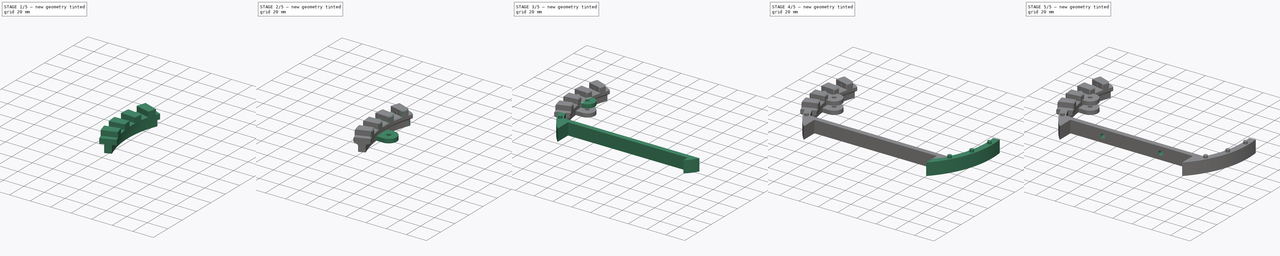
[diagram: build sequence overview — one tinted view per stage of 5, left to right]
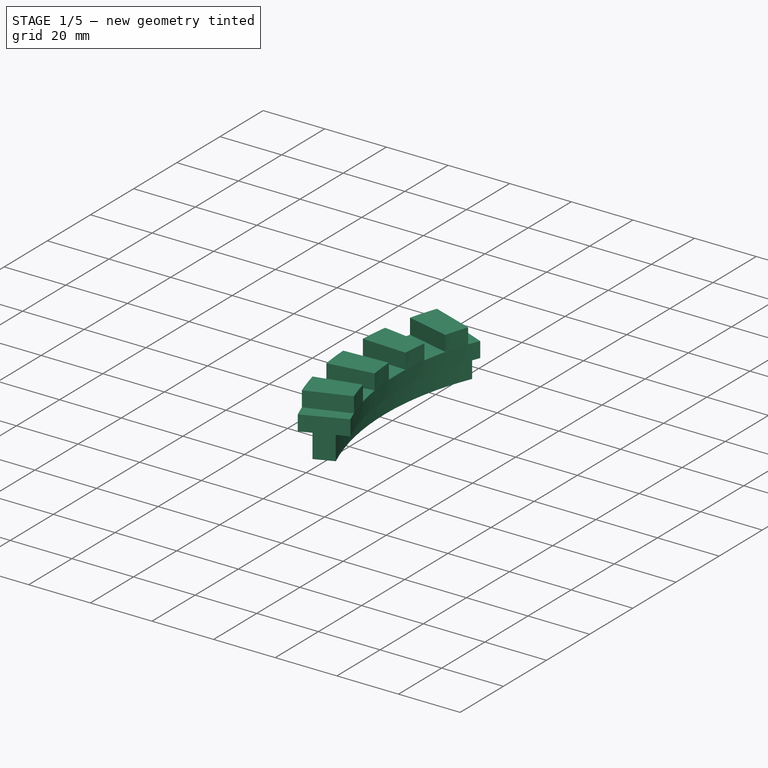
[diagram: stage 1 of 5 — iso view after this stage's code; geometry added in this stage tinted green]
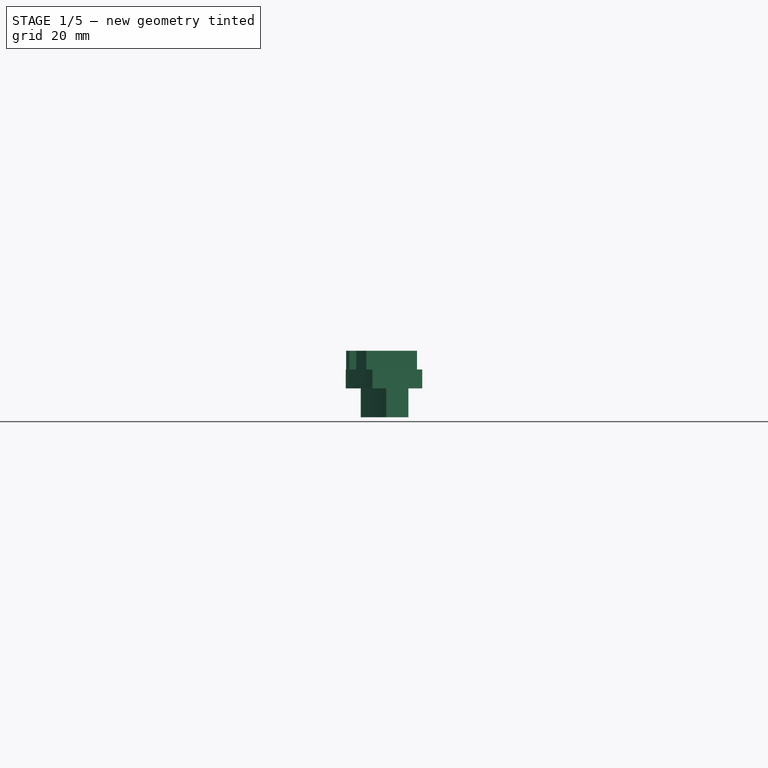
[diagram: stage 1 of 5 — front view after this stage's code; geometry added in this stage tinted green]
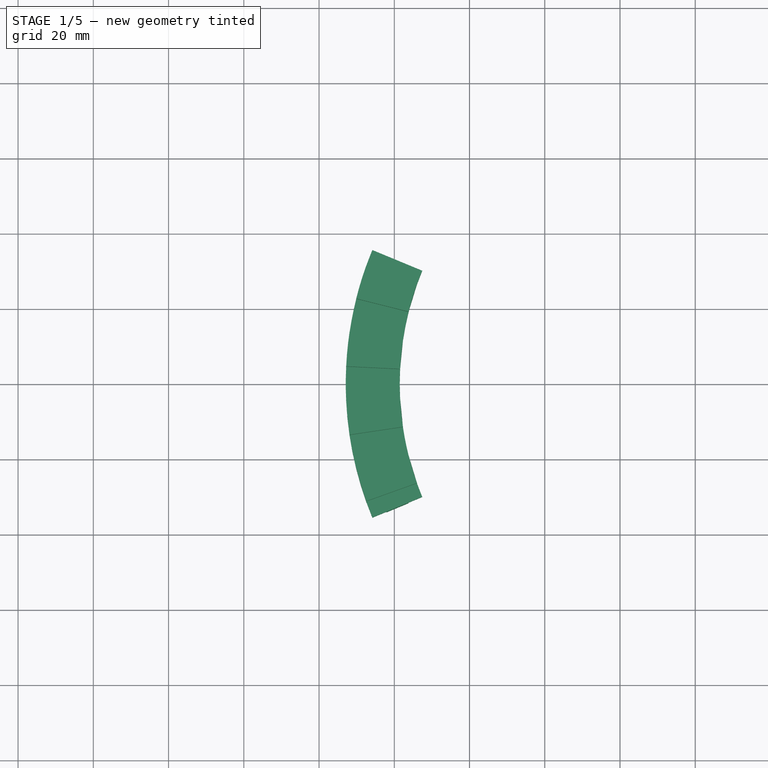
[diagram: stage 1 of 5 — top view after this stage's code; geometry added in this stage tinted green]
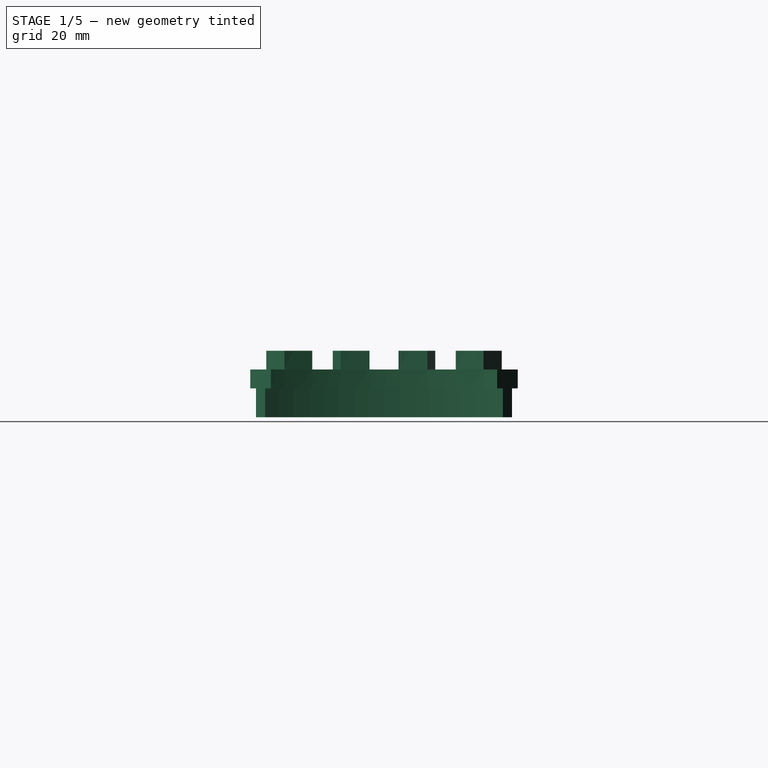
[diagram: stage 1 of 5 — right view after this stage's code; geometry added in this stage tinted green]
FCSTD DOCUMENT  (FreeCAD 0.15R4671 (Git))
Label: castle_block1
License: All rights reserved
LicenseURL: http://en.wikipedia.org/wiki/All_rights_reserved
objects: Sketcher::SketchObject×22, PartDesign::Pad×14, PartDesign::PolarPattern×8, PartDesign::Pocket×7, Part::Mirroring×3, Part::MultiFuse×3, PartDesign::Chamfer×1, PartDesign::Fillet×1
note: 80 computed .brp shape members not serialized (recipe doc carries the construction recipe); baked Part::Feature solids carry a one-line shape summary decoded from their .brp

FEATURE [Sketcher::SketchObject] Sketch004  label="WorkLines002"
  Placement = pos=(0,0,6.35) rot=(0,0,1;0rad)
  sketch-geometry (12):
    g0: LineSegment [constr] StartX=-63.5 StartY=-46.342 StartZ=0 EndX=63.5 EndY=-46.342 EndZ=0
    g1: LineSegment [constr] StartX=63.5 StartY=-46.342 StartZ=0 EndX=63.5 EndY=-62.217 EndZ=0
    g2: LineSegment [constr] StartX=63.5 StartY=-62.217 StartZ=0 EndX=-63.5 EndY=-62.217 EndZ=0
    g3: LineSegment [constr] StartX=-63.5 StartY=-62.217 StartZ=0 EndX=-63.5 EndY=-46.342 EndZ=0
    g4: LineSegment [constr] StartX=0 StartY=0 StartZ=0 EndX=-117.333 EndY=48.6008 EndZ=0
    g5: Circle [constr] CenterX=0 CenterY=0 CenterZ=0 NormalX=0 NormalY=0 NormalZ=1 Radius=88.9
    g6: Circle [constr] CenterX=0 CenterY=0 CenterZ=0 NormalX=0 NormalY=0 NormalZ=1 Radius=82.55
    g7: LineSegment [constr] StartX=0 StartY=0 StartZ=0 EndX=-117.333 EndY=-48.6008 EndZ=0
    g8: ArcOfCircle CenterX=0 CenterY=0 CenterZ=0 NormalX=0 NormalY=0 NormalZ=1 Radius=88.9 StartAngle=2.74889 EndAngle=3.53429
    g9: ArcOfCircle CenterX=0 CenterY=0 CenterZ=0 NormalX=0 NormalY=0 NormalZ=1 Radius=82.55 StartAngle=2.74889 EndAngle=3.53429
    g10: LineSegment StartX=-82.1329 StartY=34.0206 StartZ=0 EndX=-76.2663 EndY=31.5905 EndZ=0
    g11: LineSegment StartX=-82.1329 StartY=-34.0206 StartZ=0 EndX=-76.2663 EndY=-31.5905 EndZ=0
  constraints (36):
    c: Coincident(g0,g1)
    c: Coincident(g1,g2)
    c: Coincident(g2,g3)
    c: Coincident(g3,g0)
    c: Horizontal(g0)
    c: Horizontal(g2)
    c: Vertical(g1)
    c: Vertical(g3)
    c: Symmetric(g0,g0,g-2)
    c: DistanceY(g0,g1) = -15.875
    c: DistanceX(g0,g0) = 127
    c: Coincident(g4,g-1)
    c: Distance(g4) = 127
    c: Angle(g-2,g4) = 1.1781
    c: Coincident(g5,g-1)
    c: Radius(g5) = 88.9
    c: PointOnObject(g2,g5)
    c: Radius(g6) = 82.55
    c: Coincident(g6,g-1)
    c: Coincident(g7,g-1)
    c: Distance(g7) = 127
    c: Angle(g-2,g7) = 1.9635
    c: PointOnObject(g8,g4)
    c: PointOnObject(g8,g7)
    c: PointOnObject(g8,g5)
    c: PointOnObject(g8,g5)
    c: Coincident(g8,g-1)
    c: PointOnObject(g9,g4)
    c: PointOnObject(g9,g7)
    c: PointOnObject(g9,g6)
    c: PointOnObject(g9,g6)
    c: Coincident(g9,g-1)
    c: Coincident(g10,g9)
    c: Coincident(g11,g8)
    c: Coincident(g11,g9)
    c: Coincident(g10,g8)
FEATURE [PartDesign::Pad] Pad002
  Length = 12.7
  Length2 = 100
  Placement = pos=(0,0,6.35) rot=(0,0,1;0rad)
  Sketch = -> Sketch004
  Type = 0
FEATURE [Sketcher::SketchObject] Sketch005
  Placement = pos=(0,0,19.05) rot=(0,0,1;0rad)
  Support = -> Pad002 [Face6]
  sketch-geometry (3):
    g0: Circle [constr] CenterX=0 CenterY=0 CenterZ=0 NormalX=0 NormalY=0 NormalZ=1 Radius=85.725
    g1: Circle CenterX=-82.804 CenterY=-22.1873 CenterZ=0 NormalX=0 NormalY=0 NormalZ=1 Radius=1.905
    g2: LineSegment [constr] StartX=0 StartY=0 StartZ=0 EndX=-122.673 EndY=-32.87 EndZ=0
  constraints (8):
    c: Coincident(g0,g-1)
    c: Radius(g0) = 85.725
    c: Radius(g1) = 1.905
    c: Coincident(g2,g-1)
    c: Distance(g2) = 127
    c: Angle(g-2,g2) = 1.8326
    c: PointOnObject(g1,g0)
    c: PointOnObject(g1,g2)
FEATURE [PartDesign::Pad] Pad003
  Length = 2.54
  Length2 = 100
  Placement = pos=(0,0,6.35) rot=(0,0,1;0rad)
  Sketch = -> Sketch005
  Type = 0
FEATURE [PartDesign::PolarPattern] PolarPattern
  Angle = 360
  Axis = -> Sketch005 [N_Axis]
  Occurrences = 24
  Originals = -> [Pad003]
  Placement = pos=(0,0,6.35) rot=(0,0,1;0rad)
FEATURE [Sketcher::SketchObject] Sketch007
  Placement = pos=(0,0,6.35) rot=(1,0,0;3.14159rad)
  Support = -> PolarPattern [Face4]
  sketch-geometry (3):
    g0: LineSegment [constr] StartX=0 StartY=0 StartZ=0 EndX=-122.673 EndY=32.87 EndZ=0
    g1: Circle [constr] CenterX=0 CenterY=0 CenterZ=0 NormalX=0 NormalY=0 NormalZ=1 Radius=85.725
    g2: Circle CenterX=-82.804 CenterY=22.1873 CenterZ=0 NormalX=0 NormalY=0 NormalZ=1 Radius=2.032
  constraints (8):
    c: Distance(g0) = 127
    c: Coincident(g0,g-1)
    c: Angle(g-1,g0) = 2.87979
    c: Coincident(g1,g-1)
    c: Radius(g1) = 85.725
    c: PointOnObject(g2,g0)
    c: PointOnObject(g2,g1)
    c: Radius(g2) = 2.032
FEATURE [PartDesign::Pocket] Pocket001
  Length = 3.175
  Placement = pos=(0,0,6.35) rot=(0,0,1;0rad)
  Sketch = -> Sketch007
  Type = 0
FEATURE [PartDesign::PolarPattern] PolarPattern001  label="Mid1"
  Angle = 360
  Axis = -> Sketch007 [N_Axis]
  Occurrences = 24
  Originals = -> [Pocket001]
  Placement = pos=(0,0,6.35) rot=(0,0,1;0rad)
FEATURE [Sketcher::SketchObject] Sketch021
  ExternalGeometry = -> [PolarPattern001]
  Placement = pos=(0,0,19.05) rot=(0,0,1;0rad)
  Support = -> PolarPattern001 [Face5]
  sketch-geometry (8):
    g0: LineSegment StartX=-85.8284 StartY=35.5513 StartZ=0 EndX=-82.1329 EndY=34.0206 EndZ=0
    g1: LineSegment StartX=-82.1329 StartY=34.0206 StartZ=0 EndX=-76.2663 EndY=31.5905 EndZ=0
    g2: LineSegment StartX=-76.2663 StartY=31.5905 StartZ=0 EndX=-72.5707 EndY=30.0598 EndZ=0
    g3: LineSegment StartX=-82.1329 StartY=-34.0206 StartZ=0 EndX=-85.8284 EndY=-35.5513 EndZ=0
    g4: LineSegment StartX=-76.2663 StartY=-31.5905 StartZ=0 EndX=-72.5707 EndY=-30.0598 EndZ=0
    g5: LineSegment StartX=-82.1329 StartY=-34.0206 StartZ=0 EndX=-76.2663 EndY=-31.5905 EndZ=0
    g6: ArcOfCircle CenterX=0 CenterY=0 CenterZ=0 NormalX=0 NormalY=0 NormalZ=1 Radius=78.55 StartAngle=2.74889 EndAngle=3.53429
    g7: ArcOfCircle CenterX=0 CenterY=0 CenterZ=0 NormalX=0 NormalY=0 NormalZ=1 Radius=92.9 StartAngle=2.74889 EndAngle=3.53429
  constraints (22):
    c: Coincident(g0,g-5)
    c: Coincident(g1,g0)
    c: Coincident(g1,g-6)
    c: Coincident(g2,g1)
    c: Equal(g0,g2)
    c: Parallel(g0,g-3)
    c: Parallel(g2,g-3)
    c: Distance(g2) = 4
    c: Coincident(g3,g-5)
    c: Coincident(g4,g-6)
    c: Equal(g3,g0)
    c: Equal(g4,g0)
    c: Coincident(g5,g3)
    c: Coincident(g5,g4)
    c: Parallel(g3,g-4)
    c: Parallel(g4,g-4)
    c: Coincident(g6,g-1)
    c: Coincident(g6,g4)
    c: Coincident(g6,g2)
    c: Coincident(g7,g-1)
    c: Coincident(g7,g3)
    c: Coincident(g7,g0)
FEATURE [PartDesign::Pad] Pad013
  Length = 10
  Length2 = 100
  Midplane = true
  Placement = pos=(0,0,6.35) rot=(0,0,1;0rad)
  Reversed = true
  Sketch = -> Sketch021
  Type = 0
FEATURE [Sketcher::SketchObject] Sketch022
  Placement = pos=(0,0,24.05) rot=(0,0,1;0rad)
  Support = -> Pad013 [Face5]
  sketch-geometry (31):
    g0: LineSegment [constr] StartX=0 StartY=0 StartZ=0 EndX=-126.755 EndY=45.3538 EndZ=0
    g1: LineSegment [constr] StartX=0 StartY=0 StartZ=0 EndX=-133.168 EndY=19.7536 EndZ=0
    g2: LineSegment [constr] StartX=0 StartY=0 StartZ=0 EndX=-134.463 EndY=-6.60574 EndZ=0
    g3: LineSegment [constr] StartX=0 StartY=0 StartZ=0 EndX=-130.59 EndY=-32.7112 EndZ=0
    g4: LineSegment [constr] StartX=0 StartY=0 StartZ=0 EndX=-121.7 EndY=-57.5596 EndZ=0
    g5: LineSegment [constr] StartX=0 StartY=0 StartZ=0 EndX=-134.463 EndY=6.60574 EndZ=0
    g6: LineSegment [constr] StartX=0 StartY=0 StartZ=0 EndX=-130.59 EndY=32.7112 EndZ=0
    g7: LineSegment [constr] StartX=0 StartY=0 StartZ=0 EndX=-133.168 EndY=-19.7536 EndZ=0
    g8: LineSegment [constr] StartX=0 StartY=0 StartZ=0 EndX=-126.755 EndY=-45.3538 EndZ=0
    g9: LineSegment StartX=-121.7 StartY=-57.5596 StartZ=0 EndX=-126.755 EndY=-45.3538 EndZ=0
    g10: LineSegment StartX=-130.59 StartY=-32.7112 StartZ=0 EndX=-133.168 EndY=-19.7536 EndZ=0
    g11: LineSegment StartX=-134.463 StartY=-6.60574 StartZ=0 EndX=-134.463 EndY=6.60574 EndZ=0
    g12: LineSegment StartX=-133.168 StartY=19.7536 StartZ=0 EndX=-130.59 EndY=32.7112 EndZ=0
    g13: Circle [constr] CenterX=0 CenterY=0 CenterZ=0 NormalX=0 NormalY=0 NormalZ=1 Radius=55.341
    g14: LineSegment StartX=-121.7 StartY=-57.5596 StartZ=0 EndX=-50.0277 EndY=-23.6613 EndZ=0
    g15: LineSegment StartX=-50.0277 StartY=-23.6613 StartZ=0 EndX=-52.106 EndY=-18.6438 EndZ=0
    g16: LineSegment StartX=-52.106 StartY=-18.6438 StartZ=0 EndX=-126.755 EndY=-45.3538 EndZ=0
    g17: LineSegment StartX=-130.59 StartY=-32.7112 StartZ=0 EndX=-53.6825 EndY=-13.4468 EndZ=0
    g18: LineSegment StartX=-53.6825 StartY=-13.4468 StartZ=0 EndX=-54.742 EndY=-8.12021 EndZ=0
    g19: LineSegment StartX=-54.742 StartY=-8.12021 StartZ=0 EndX=-133.168 EndY=-19.7536 EndZ=0
    g20: LineSegment StartX=-134.463 StartY=-6.60574 StartZ=0 EndX=-55.2743 EndY=-2.71545 EndZ=0
    g21: LineSegment StartX=-55.2743 StartY=2.71545 StartZ=0 EndX=-134.463 EndY=6.60574 EndZ=0
    g22: LineSegment StartX=-133.168 StartY=19.7536 StartZ=0 EndX=-54.742 EndY=8.12021 EndZ=0
    g23: LineSegment StartX=-54.742 StartY=8.12021 StartZ=0 EndX=-53.6825 EndY=13.4468 EndZ=0
    g24: LineSegment StartX=-53.6825 StartY=13.4468 StartZ=0 EndX=-130.59 EndY=32.7112 EndZ=0
    g25: LineSegment StartX=-55.2743 StartY=2.71545 StartZ=0 EndX=-55.2743 EndY=-2.71545 EndZ=0
    g26: LineSegment [constr] StartX=0 StartY=0 StartZ=0 EndX=-121.064 EndY=58.8837 EndZ=0
    g27: LineSegment StartX=-121.064 StartY=58.8837 StartZ=0 EndX=-126.755 EndY=45.3538 EndZ=0
    g28: LineSegment StartX=-126.755 StartY=45.3538 StartZ=0 EndX=-52.106 EndY=18.6438 EndZ=0
    g29: LineSegment StartX=-52.106 StartY=18.6438 StartZ=0 EndX=-49.7666 EndY=24.2056 EndZ=0
    g30: LineSegment StartX=-49.7666 StartY=24.2056 StartZ=0 EndX=-121.064 EndY=58.8837 EndZ=0
  constraints (82):
    c: Coincident(g0,g-1)
    c: Coincident(g1,g-1)
    c: Coincident(g2,g-1)
    c: Coincident(g3,g-1)
    c: Coincident(g4,g-1)
    c: Coincident(g5,g-1)
    c: Coincident(g6,g-1)
    c: Angle(g0,g2) = 0.392699
    c: Distance(g0) = 134.625
    c: Equal(g0,g6)
    c: Equal(g6,g1)
    c: Equal(g1,g5)
    c: Equal(g5,g2)
    c: Equal(g2,g3)
    c: Equal(g3,g4)
    c: Angle(g0,g6) = 0.0981748
    c: Angle(g6,g1) = 0.0981748
    c: Angle(g1,g5) = 0.0981748
    c: Coincident(g7,g-1)
    c: Coincident(g8,g-1)
    c: Equal(g0,g7)
    c: Equal(g0,g8)
    c: Angle(g2,g7) = 0.0981748
    c: Angle(g7,g3) = 0.0981748
    c: Angle(g3,g8) = 0.0981748
    c: Angle(g8,g4) = 0.0981748
    c: Coincident(g9,g4)
    c: Coincident(g9,g8)
    c: Coincident(g10,g3)
    c: Coincident(g10,g7)
    c: Coincident(g11,g2)
    c: Coincident(g11,g5)
    c: Coincident(g12,g1)
    c: Coincident(g12,g6)
    c: Coincident(g13,g-1)
    c: Radius(g13) = 55.341
    c: Coincident(g4,g14)
    c: PointOnObject(g14,g13)
    c: Coincident(g14,g15)
    c: PointOnObject(g15,g13)
    c: Coincident(g15,g16)
    c: Coincident(g16,g8)
    c: PointOnObject(g14,g4)
    c: PointOnObject(g15,g8)
    c: Coincident(g3,g17)
    c: PointOnObject(g17,g13)
    c: Coincident(g17,g18)
    c: PointOnObject(g18,g13)
    c: Coincident(g18,g19)
    c: Coincident(g19,g7)
    c: PointOnObject(g18,g7)
    c: PointOnObject(g17,g3)
    c: Coincident(g2,g20)
    c: PointOnObject(g20,g13)
    c: Coincident(g5,g21)
    c: PointOnObject(g20,g2)
    c: PointOnObject(g21,g5)
    c: PointOnObject(g21,g13)
    c: Coincident(g1,g22)
    c: PointOnObject(g22,g13)
    c: Coincident(g22,g23)
    c: PointOnObject(g23,g13)
    c: Coincident(g23,g24)
    c: Coincident(g24,g6)
    c: PointOnObject(g22,g1)
    c: PointOnObject(g23,g6)
    c: Coincident(g25,g21)
    c: Coincident(g25,g20)
    c: Angle(g-1,g2) = 3.19068
    c: Coincident(g26,g-1)
    c: Equal(g26,g0)
    c: Angle(g26,g0) = 0.109083
    c: Coincident(g26,g27)
    c: Coincident(g27,g0)
    c: Coincident(g27,g28)
    c: PointOnObject(g28,g13)
    c: Coincident(g28,g29)
    c: PointOnObject(g29,g13)
    c: Coincident(g29,g30)
    c: Coincident(g30,g27)
    c: PointOnObject(g28,g0)
    c: PointOnObject(g29,g26)
FEATURE [PartDesign::Pocket] Pocket006
  Length = 5
  Placement = pos=(0,0,6.35) rot=(0,0,1;0rad)
  Sketch = -> Sketch022
  Type = 0
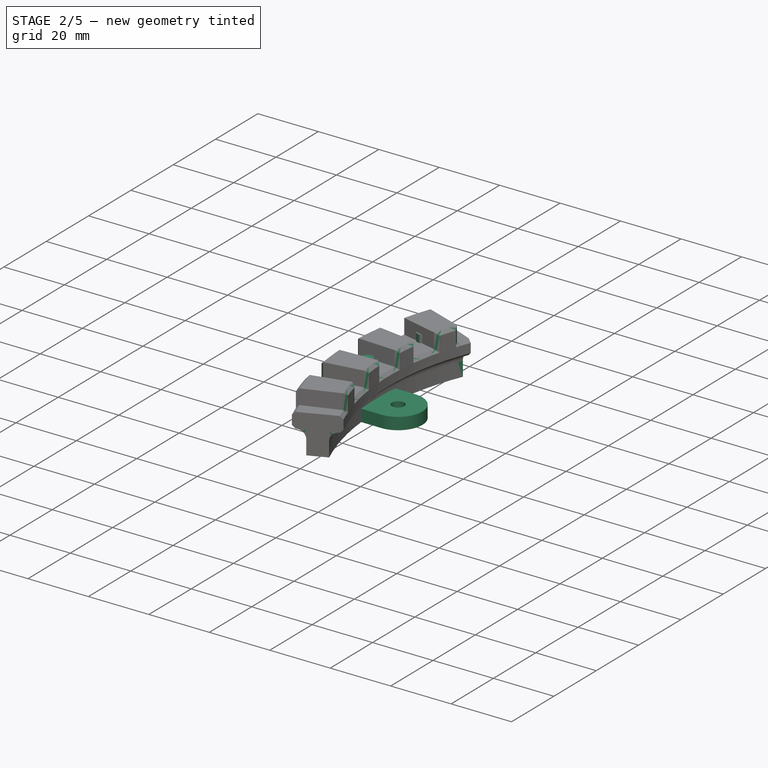
[diagram: stage 2 of 5 — iso view after this stage's code; geometry added in this stage tinted green]
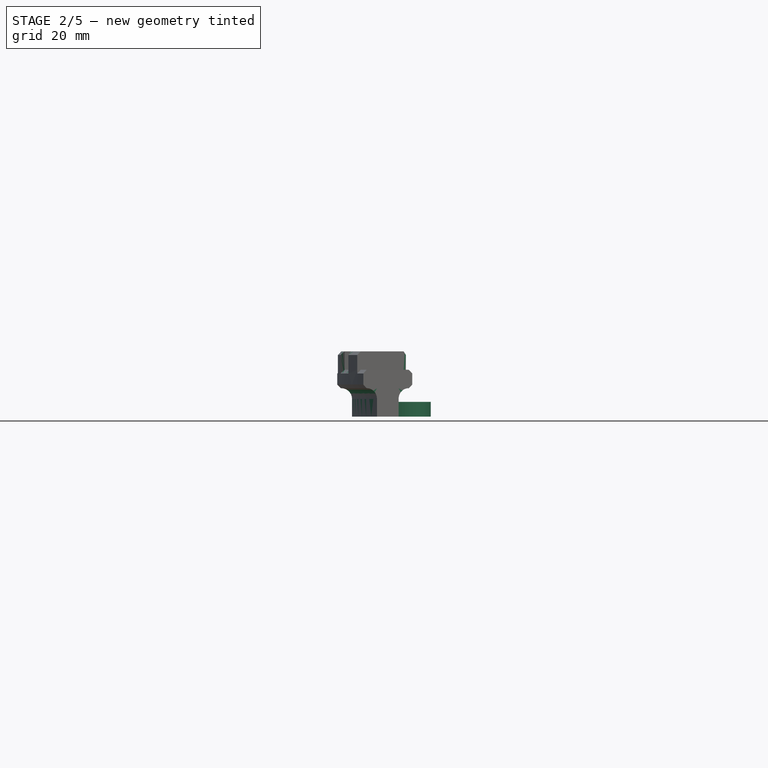
[diagram: stage 2 of 5 — front view after this stage's code; geometry added in this stage tinted green]
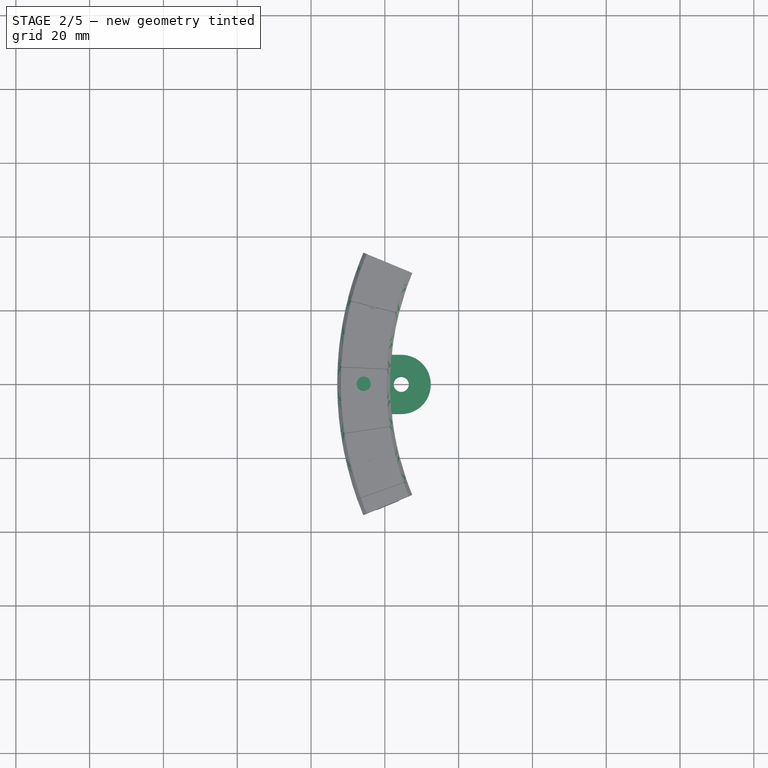
[diagram: stage 2 of 5 — top view after this stage's code; geometry added in this stage tinted green]
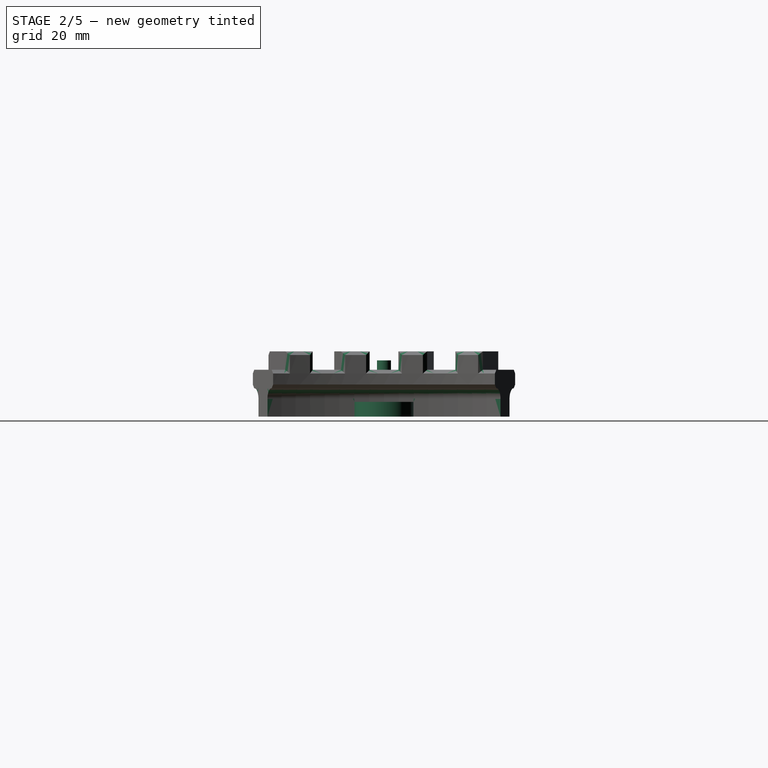
[diagram: stage 2 of 5 — right view after this stage's code; geometry added in this stage tinted green]
FEATURE [Sketcher::SketchObject] Sketch017  label="WorkLines006"
  Placement = pos=(0,0,6.35) rot=(0,0,1;0rad)
  sketch-geometry (12):
    g0: LineSegment [constr] StartX=-63.5 StartY=-46.342 StartZ=0 EndX=63.5 EndY=-46.342 EndZ=0
    g1: LineSegment [constr] StartX=63.5 StartY=-46.342 StartZ=0 EndX=63.5 EndY=-62.217 EndZ=0
    g2: LineSegment [constr] StartX=63.5 StartY=-62.217 StartZ=0 EndX=-63.5 EndY=-62.217 EndZ=0
    g3: LineSegment [constr] StartX=-63.5 StartY=-62.217 StartZ=0 EndX=-63.5 EndY=-46.342 EndZ=0
    g4: LineSegment [constr] StartX=0 StartY=0 StartZ=0 EndX=-117.333 EndY=48.6008 EndZ=0
    g5: Circle [constr] CenterX=0 CenterY=0 CenterZ=0 NormalX=0 NormalY=0 NormalZ=1 Radius=88.9
    g6: Circle [constr] CenterX=0 CenterY=0 CenterZ=0 NormalX=0 NormalY=0 NormalZ=1 Radius=82.55
    g7: LineSegment [constr] StartX=0 StartY=0 StartZ=0 EndX=-117.333 EndY=-48.6008 EndZ=0
    g8: ArcOfCircle CenterX=0 CenterY=0 CenterZ=0 NormalX=0 NormalY=0 NormalZ=1 Radius=88.9 StartAngle=2.74889 EndAngle=3.53429
    g9: ArcOfCircle CenterX=0 CenterY=0 CenterZ=0 NormalX=0 NormalY=0 NormalZ=1 Radius=82.55 StartAngle=2.74889 EndAngle=3.53429
    g10: LineSegment StartX=-82.1329 StartY=34.0206 StartZ=0 EndX=-76.2663 EndY=31.5905 EndZ=0
    g11: LineSegment StartX=-82.1329 StartY=-34.0206 StartZ=0 EndX=-76.2663 EndY=-31.5905 EndZ=0
  constraints (36):
    c: Coincident(g0,g1)
    c: Coincident(g1,g2)
    c: Coincident(g2,g3)
    c: Coincident(g3,g0)
    c: Horizontal(g0)
    c: Horizontal(g2)
    c: Vertical(g1)
    c: Vertical(g3)
    c: Symmetric(g0,g0,g-2)
    c: DistanceY(g0,g1) = -15.875
    c: DistanceX(g0,g0) = 127
    c: Coincident(g4,g-1)
    c: Distance(g4) = 127
    c: Angle(g-2,g4) = 1.1781
    c: Coincident(g5,g-1)
    c: Radius(g5) = 88.9
    c: PointOnObject(g2,g5)
    c: Radius(g6) = 82.55
    c: Coincident(g6,g-1)
    c: Coincident(g7,g-1)
    c: Distance(g7) = 127
    c: Angle(g-2,g7) = 1.9635
    c: PointOnObject(g8,g4)
    c: PointOnObject(g8,g7)
    c: PointOnObject(g8,g5)
    c: PointOnObject(g8,g5)
    c: Coincident(g8,g-1)
    c: PointOnObject(g9,g4)
    c: PointOnObject(g9,g7)
    c: PointOnObject(g9,g6)
    c: PointOnObject(g9,g6)
    c: Coincident(g9,g-1)
    c: Coincident(g10,g9)
    c: Coincident(g11,g8)
    c: Coincident(g11,g9)
    c: Coincident(g10,g8)
FEATURE [PartDesign::Pad] Pad010
  Length = 12.7
  Length2 = 100
  Placement = pos=(0,0,6.35) rot=(0,0,1;0rad)
  Sketch = -> Sketch017
  Type = 0
FEATURE [Sketcher::SketchObject] Sketch018
  Placement = pos=(0,0,19.05) rot=(0,0,1;0rad)
  Support = -> Pad010 [Face6]
  sketch-geometry (3):
    g0: Circle [constr] CenterX=0 CenterY=0 CenterZ=0 NormalX=0 NormalY=0 NormalZ=1 Radius=85.725
    g1: Circle CenterX=-82.804 CenterY=-22.1873 CenterZ=0 NormalX=0 NormalY=0 NormalZ=1 Radius=1.905
    g2: LineSegment [constr] StartX=0 StartY=0 StartZ=0 EndX=-122.673 EndY=-32.87 EndZ=0
  constraints (8):
    c: Coincident(g0,g-1)
    c: Radius(g0) = 85.725
    c: Radius(g1) = 1.905
    c: Coincident(g2,g-1)
    c: Distance(g2) = 127
    c: Angle(g-2,g2) = 1.8326
    c: PointOnObject(g1,g0)
    c: PointOnObject(g1,g2)
FEATURE [PartDesign::Pad] Pad011
  Length = 2.54
  Length2 = 100
  Placement = pos=(0,0,6.35) rot=(0,0,1;0rad)
  Sketch = -> Sketch018
  Type = 0
FEATURE [PartDesign::PolarPattern] PolarPattern006
  Angle = 360
  Axis = -> Sketch018 [N_Axis]
  Occurrences = 24
  Originals = -> [Pad011]
  Placement = pos=(0,0,6.35) rot=(0,0,1;0rad)
FEATURE [Sketcher::SketchObject] Sketch019
  Placement = pos=(0,0,6.35) rot=(1,0,0;3.14159rad)
  Support = -> PolarPattern006 [Face4]
  sketch-geometry (3):
    g0: LineSegment [constr] StartX=0 StartY=0 StartZ=0 EndX=-122.673 EndY=32.87 EndZ=0
    g1: Circle [constr] CenterX=0 CenterY=0 CenterZ=0 NormalX=0 NormalY=0 NormalZ=1 Radius=85.725
    g2: Circle CenterX=-82.804 CenterY=22.1873 CenterZ=0 NormalX=0 NormalY=0 NormalZ=1 Radius=2.032
  constraints (8):
    c: Distance(g0) = 127
    c: Coincident(g0,g-1)
    c: Angle(g-1,g0) = 2.87979
    c: Coincident(g1,g-1)
    c: Radius(g1) = 85.725
    c: PointOnObject(g2,g0)
    c: PointOnObject(g2,g1)
    c: Radius(g2) = 2.032
FEATURE [PartDesign::Pocket] Pocket005
  Length = 3.175
  Placement = pos=(0,0,6.35) rot=(0,0,1;0rad)
  Sketch = -> Sketch019
  Type = 0
FEATURE [PartDesign::PolarPattern] PolarPattern007  label="Mid002"
  Angle = 360
  Axis = -> Sketch019 [N_Axis]
  Occurrences = 24
  Originals = -> [Pocket005]
  Placement = pos=(0,0,6.35) rot=(0,0,1;0rad)
FEATURE [Sketcher::SketchObject] Sketch020
  ExternalGeometry = -> [PolarPattern007]
  Placement = pos=(0,0,6.35) rot=(1,0,0;3.14159rad)
  Support = -> PolarPattern007 [Face4]
  sketch-geometry (8):
    g0: LineSegment [constr] StartX=-76.2663 StartY=31.5905 StartZ=0 EndX=-76.2663 EndY=-1.5e-11 EndZ=0
    g1: LineSegment [constr] StartX=-76.2663 StartY=-1.5e-11 StartZ=0 EndX=-76.2663 EndY=-31.5905 EndZ=0
    g2: ArcOfCircle CenterX=-75.55 CenterY=0 CenterZ=0 NormalX=0 NormalY=0 NormalZ=1 Radius=8 StartAngle=4.71239 EndAngle=7.85399
    g3: LineSegment StartX=-75.55 StartY=8 StartZ=0 EndX=-82.1614 EndY=8 EndZ=0
    g4: LineSegment StartX=-75.55 StartY=-8 StartZ=0 EndX=-82.1614 EndY=-8 EndZ=0
    g5: ArcOfCircle CenterX=0 CenterY=0 CenterZ=0 NormalX=0 NormalY=0 NormalZ=1 Radius=82.55 StartAngle=3.04453 EndAngle=3.23866
    g6: LineSegment [constr] StartX=-75.55 StartY=0 StartZ=0 EndX=-82.55 EndY=0 EndZ=0
    g7: Circle CenterX=-75.55 CenterY=0 CenterZ=0 NormalX=0 NormalY=0 NormalZ=1 Radius=2.05
  constraints (23):
    c: Coincident(g-3,g0)
    c: Coincident(g0,g1)
    c: Coincident(g1,g-3)
    c: Equal(g0,g1)
    c: Parallel(g0,g1)
    c: Horizontal(g3)
    c: PointOnObject(g4,g-3)
    c: Horizontal(g4)
    c: Coincident(g2,g3)
    c: Coincident(g4,g2)
    c: Symmetric(g2,g2,g-1)
    c: Tangent(g3,g2)
    c: PointOnObject(g3,g-3)
    c: Coincident(g5,g3)
    c: Coincident(g5,g4)
    c: Tangent(g5,g-3)
    c: Coincident(g6,g2)
    c: PointOnObject(g6,g-3)
    c: Horizontal(g6)
    c: Radius(g2) = 8
    c: Distance(g6) = 7
    c: Radius(g7) = 2.05
    c: Coincident(g7,g2)
FEATURE [PartDesign::Pad] Pad012
  Length = 4
  Length2 = 100
  Placement = pos=(0,0,6.35) rot=(0,0,1;0rad)
  Reversed = true
  Sketch = -> Sketch020
  Type = 0
FEATURE [PartDesign::Chamfer] Chamfer
  Base = -> Pocket006 [Edge1,Edge19,Edge18,Edge17,Edge16,Edge15,Edge14,Edge13,Edge12,Edge11,Edge10,Edge9,Edge8,Edge7,Edge6,Edge5,Edge3,Edge28,Edge31,Edge33,Edge34,Edge36,Edge72,Edge39,Edge41,Edge42,Edge45,Edge47,Edge49,Edge50,Edge53,Edge55,Edge57,Edge58,Edge60]
  Placement = pos=(0,0,6.35) rot=(0,0,1;0rad)
  Size = 1
FEATURE [PartDesign::Fillet] Fillet
  Base = -> Chamfer [Edge68,Edge160]
  Placement = pos=(0,0,6.35) rot=(0,0,1;0rad)
  Radius = 2.9
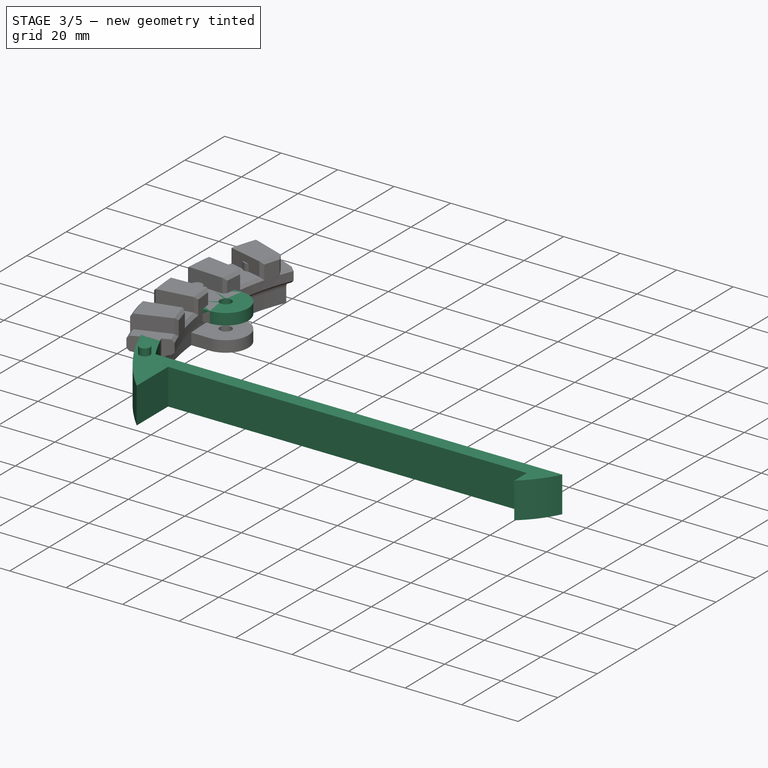
[diagram: stage 3 of 5 — iso view after this stage's code; geometry added in this stage tinted green]
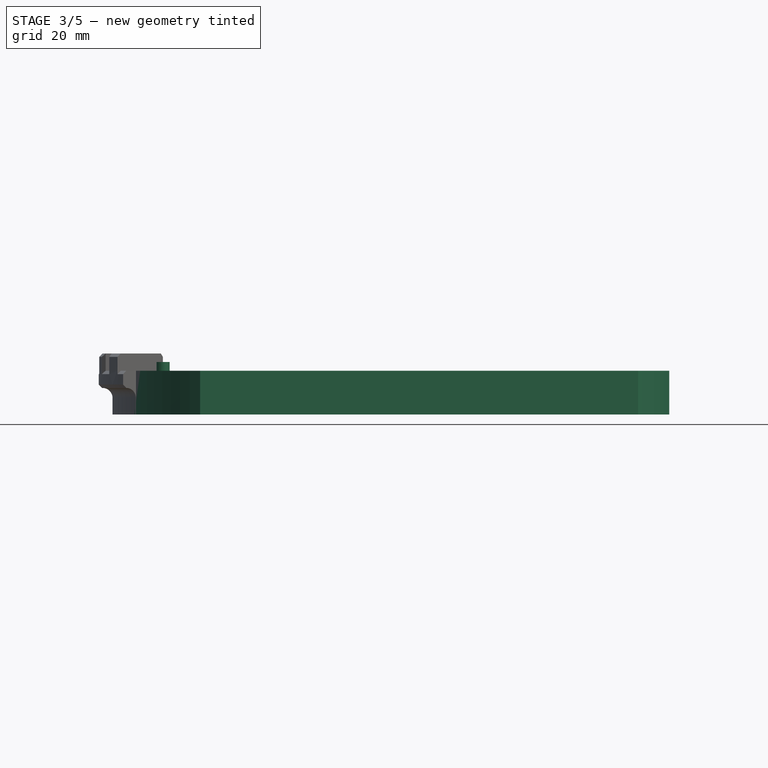
[diagram: stage 3 of 5 — front view after this stage's code; geometry added in this stage tinted green]
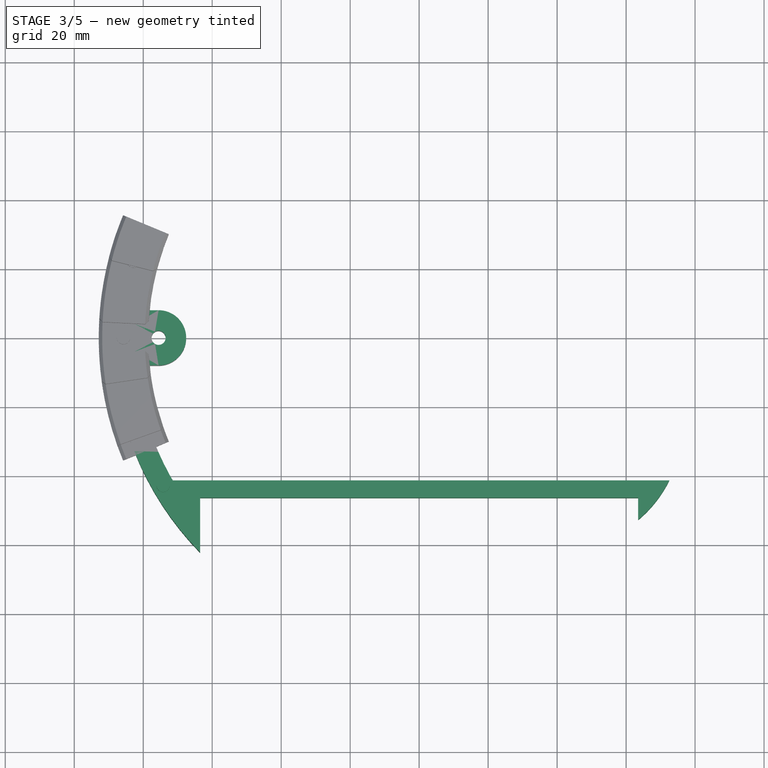
[diagram: stage 3 of 5 — top view after this stage's code; geometry added in this stage tinted green]
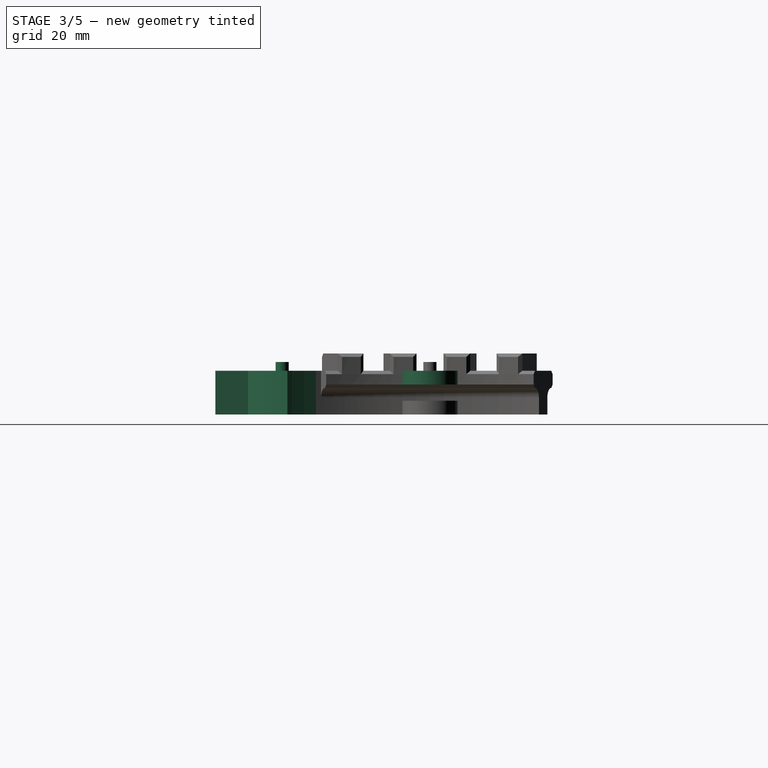
[diagram: stage 3 of 5 — right view after this stage's code; geometry added in this stage tinted green]
FEATURE [Sketcher::SketchObject] Sketch011  label="WorkLines004"
  Placement = pos=(0,0,6.35) rot=(0,0,1;0rad)
  sketch-geometry (17):
    g0: LineSegment [constr] StartX=-63.5 StartY=-46.342 StartZ=0 EndX=63.5 EndY=-46.342 EndZ=0
    g1: LineSegment [constr] StartX=63.5 StartY=-46.342 StartZ=0 EndX=63.5 EndY=-62.217 EndZ=0
    g2: LineSegment [constr] StartX=63.5 StartY=-62.217 StartZ=0 EndX=-63.5 EndY=-62.217 EndZ=0
    g3: LineSegment [constr] StartX=-63.5 StartY=-62.217 StartZ=0 EndX=-63.5 EndY=-46.342 EndZ=0
    g4: LineSegment [constr] StartX=0 StartY=0 StartZ=0 EndX=-127 EndY=0 EndZ=0
    g5: LineSegment [constr] StartX=0 StartY=0 StartZ=0 EndX=-89.8026 EndY=89.8026 EndZ=0
    g6: Circle [constr] CenterX=0 CenterY=0 CenterZ=0 NormalX=0 NormalY=0 NormalZ=1 Radius=88.9
    g7: Circle [constr] CenterX=0 CenterY=0 CenterZ=0 NormalX=0 NormalY=0 NormalZ=1 Radius=82.55
    g8: LineSegment [constr] StartX=0 StartY=0 StartZ=0 EndX=-125.913 EndY=-16.5768 EndZ=0
    g9: GeomPoint [constr] X=-63.5 Y=-52.7471 Z=0
    g10: GeomPoint [constr] X=63.5 Y=-52.7471 Z=0
    g11: LineSegment StartX=-63.5 StartY=-62.217 StartZ=0 EndX=-63.5 EndY=-52.7471 EndZ=0
    g12: GeomPoint [constr] X=-81.8438 Y=-10.7749 Z=0
    g13: GeomPoint [constr] X=-88.1394 Y=-11.6038 Z=0
    g14: LineSegment StartX=-88.1394 StartY=-11.6038 StartZ=0 EndX=-81.8438 EndY=-10.7749 EndZ=0
    g15: ArcOfCircle CenterX=0 CenterY=0 CenterZ=0 NormalX=0 NormalY=0 NormalZ=1 Radius=88.9 StartAngle=3.27249 EndAngle=3.91679
    g16: ArcOfCircle CenterX=0 CenterY=0 CenterZ=0 NormalX=0 NormalY=0 NormalZ=1 Radius=82.55 StartAngle=3.27249 EndAngle=3.83475
  constraints (43):
    c: Coincident(g0,g1)
    c: Coincident(g1,g2)
    c: Coincident(g2,g3)
    c: Coincident(g3,g0)
    c: Horizontal(g0)
    c: Horizontal(g2)
    c: Vertical(g1)
    c: Vertical(g3)
    c: Symmetric(g0,g0,g-2)
    c: DistanceY(g0,g1) = -15.875
    c: DistanceX(g0,g0) = 127
    c: Coincident(g4,g-1)
    c: Distance(g4) = 127
    c: Angle(g-2,g4) = 1.5708
    c: Coincident(g5,g-1)
    c: Distance(g5) = 127
    c: Angle(g-2,g5) = 0.785398
    c: Coincident(g6,g-1)
    c: Radius(g6) = 88.9
    c: PointOnObject(g2,g6)
    c: Radius(g7) = 82.55
    c: Coincident(g7,g-1)
    c: Coincident(g8,g-1)
    c: Distance(g8) = 127
    c: Angle(g-2,g8) = 1.7017
    c: PointOnObject(g9,g7)
    c: PointOnObject(g9,g3)
    c: PointOnObject(g10,g1)
    c: PointOnObject(g10,g7)
    c: Coincident(g11,g2)
    c: Coincident(g11,g9)
    c: PointOnObject(g12,g7)
    c: PointOnObject(g12,g8)
    c: PointOnObject(g13,g6)
    c: PointOnObject(g13,g8)
    c: Coincident(g14,g13)
    c: Coincident(g14,g12)
    c: Coincident(g15,g13)
    c: Coincident(g15,g2)
    c: Radius(g15) = 88.9
    c: Coincident(g16,g12)
    c: Coincident(g16,g9)
    c: Radius(g16) = 82.55
FEATURE [PartDesign::Pad] Pad006
  Length = 12.7
  Length2 = 100
  Placement = pos=(0,0,6.35) rot=(0,0,1;0rad)
  Sketch = -> Sketch011
  Type = 0
FEATURE [Sketcher::SketchObject] Sketch012
  Placement = pos=(0,0,19.05) rot=(0,0,1;0rad)
  Support = -> Pad006 [Face6]
  sketch-geometry (3):
    g0: Circle [constr] CenterX=0 CenterY=0 CenterZ=0 NormalX=0 NormalY=0 NormalZ=1 Radius=85.725
    g1: Circle CenterX=-74.24 CenterY=-42.8625 CenterZ=0 NormalX=0 NormalY=0 NormalZ=1 Radius=1.905
    g2: LineSegment [constr] StartX=0 StartY=0 StartZ=0 EndX=-109.985 EndY=-63.5 EndZ=0
  constraints (8):
    c: Coincident(g0,g-1)
    c: Radius(g0) = 85.725
    c: Radius(g1) = 1.905
    c: Coincident(g2,g-1)
    c: Distance(g2) = 127
    c: Angle(g-2,g2) = 2.0944
    c: PointOnObject(g1,g0)
    c: PointOnObject(g1,g2)
FEATURE [PartDesign::Pad] Pad007
  Length = 2.54
  Length2 = 100
  Placement = pos=(0,0,6.35) rot=(0,0,1;0rad)
  Sketch = -> Sketch012
  Type = 0
FEATURE [PartDesign::PolarPattern] PolarPattern004
  Angle = 360
  Axis = -> Sketch012 [N_Axis]
  Occurrences = 24
  Originals = -> [Pad007]
  Placement = pos=(0,0,6.35) rot=(0,0,1;0rad)
FEATURE [Sketcher::SketchObject] Sketch013
  Placement = pos=(0,0,6.35) rot=(1,0,0;3.14159rad)
  Support = -> PolarPattern004 [Face4]
  sketch-geometry (3):
    g0: LineSegment [constr] StartX=0 StartY=0 StartZ=0 EndX=-109.985 EndY=63.5 EndZ=0
    g1: Circle [constr] CenterX=0 CenterY=0 CenterZ=0 NormalX=0 NormalY=0 NormalZ=1 Radius=85.725
    g2: Circle CenterX=-74.24 CenterY=42.8625 CenterZ=0 NormalX=0 NormalY=0 NormalZ=1 Radius=2.032
  constraints (8):
    c: Distance(g0) = 127
    c: Coincident(g0,g-1)
    c: Angle(g-1,g0) = 2.61799
    c: Coincident(g1,g-1)
    c: Radius(g1) = 85.725
    c: PointOnObject(g2,g0)
    c: PointOnObject(g2,g1)
    c: Radius(g2) = 2.032
FEATURE [PartDesign::Pocket] Pocket003
  Length = 3.175
  Placement = pos=(0,0,6.35) rot=(0,0,1;0rad)
  Sketch = -> Sketch013
  Type = 0
FEATURE [PartDesign::PolarPattern] PolarPattern005  label="End2"
  Angle = 360
  Axis = -> Sketch013 [N_Axis]
  Occurrences = 24
  Originals = -> [Pocket003]
  Placement = pos=(0,0,6.35) rot=(0,0,1;0rad)
FEATURE [Sketcher::SketchObject] Sketch014  label="WorkLines005"
  Placement = pos=(0,0,6.35) rot=(0,0,1;0rad)
  sketch-geometry (9):
    g0: GeomPoint [constr] X=-63.5 Y=-52.7471 Z=0
    g1: GeomPoint [constr] X=63.5 Y=-52.7471 Z=0
    g2: LineSegment StartX=-63.5 StartY=-52.7471 StartZ=0 EndX=-63.5 EndY=-46.342 EndZ=0
    g3: LineSegment StartX=-63.5 StartY=-46.342 StartZ=0 EndX=63.5 EndY=-46.342 EndZ=0
    g4: LineSegment StartX=63.5 StartY=-46.342 StartZ=0 EndX=63.5 EndY=-52.7471 EndZ=0
    g5: LineSegment StartX=72.515 StartY=-41.342 StartZ=0 EndX=-72.515 EndY=-41.342 EndZ=0
    g6: LineSegment [constr] StartX=-63.5 StartY=-46.342 StartZ=0 EndX=-63.5 EndY=-41.342 EndZ=0
    g7: ArcOfCircle CenterX=-40.7025 CenterY=-25.4616 CenterZ=0 NormalX=0 NormalY=0 NormalZ=1 Radius=35.5559 StartAngle=3.60459 EndAngle=4.01636
    g8: ArcOfCircle CenterX=40.7025 CenterY=-25.4616 CenterZ=0 NormalX=0 NormalY=0 NormalZ=1 Radius=35.5559 StartAngle=5.40841 EndAngle=5.82019
  constraints (23):
    c: Coincident(g2,g0)
    c: Coincident(g2,g3)
    c: Coincident(g3,g4)
    c: Coincident(g4,g1)
    c: Horizontal(g5)
    c: PointOnObject(g6,g5)
    c: Vertical(g6)
    c: DistanceY(g6) = 5
    c: DistanceY(g0) = -52.7471
    c: DistanceX(g2) = -63.5
    c: DistanceY(g2) = -46.342
    c: Coincident(g6,g2)
    c: Coincident(g7,g0)
    c: Coincident(g7,g5)
    c: Coincident(g8,g1)
    c: Coincident(g8,g5)
    c: Vertical(g2)
    c: Symmetric(g2,g3,g-2)
    c: Symmetric(g5,g5,g-2)
    c: DistanceX(g5) = -72.515
    c: Equal(g7,g8)
    c: Symmetric(g0,g1,g-2)
    c: Radius(g7) = 35.5559
FEATURE [PartDesign::Pad] Pad008
  Length = 12.7
  Length2 = 100
  Placement = pos=(0,0,6.35) rot=(0,0,1;0rad)
  Sketch = -> Sketch014
  Type = 0
FEATURE [Sketcher::SketchObject] Sketch016
  ExternalGeometry = -> [PolarPattern001]
  Placement = pos=(0,0,19.05) rot=(0,0,1;0rad)
  Support = -> PolarPattern001 [Face5]
  sketch-geometry (8):
    g0: LineSegment [constr] StartX=-76.2663 StartY=31.5905 StartZ=0 EndX=-76.2663 EndY=-1.5e-11 EndZ=0
    g1: LineSegment [constr] StartX=-76.2663 StartY=-1.5e-11 StartZ=0 EndX=-76.2663 EndY=-31.5905 EndZ=0
    g2: ArcOfCircle CenterX=-75.55 CenterY=0 CenterZ=0 NormalX=0 NormalY=0 NormalZ=1 Radius=8 StartAngle=4.71239 EndAngle=7.85399
    g3: LineSegment StartX=-75.55 StartY=8 StartZ=0 EndX=-82.1614 EndY=8 EndZ=0
    g4: LineSegment StartX=-75.55 StartY=-8 StartZ=0 EndX=-82.1614 EndY=-8 EndZ=0
    g5: ArcOfCircle CenterX=0 CenterY=0 CenterZ=0 NormalX=0 NormalY=0 NormalZ=1 Radius=82.55 StartAngle=3.04453 EndAngle=3.23866
    g6: LineSegment [constr] StartX=-75.55 StartY=0 StartZ=0 EndX=-82.55 EndY=0 EndZ=0
    g7: Circle CenterX=-75.55 CenterY=0 CenterZ=0 NormalX=0 NormalY=0 NormalZ=1 Radius=2.05
  constraints (23):
    c: Coincident(g-3,g0)
    c: Coincident(g0,g1)
    c: Coincident(g1,g-3)
    c: Equal(g0,g1)
    c: Parallel(g0,g1)
    c: Horizontal(g3)
    c: PointOnObject(g4,g-3)
    c: Horizontal(g4)
    c: Coincident(g2,g3)
    c: Coincident(g4,g2)
    c: Symmetric(g2,g2,g-1)
    c: Tangent(g3,g2)
    c: PointOnObject(g3,g-3)
    c: Coincident(g5,g3)
    c: Coincident(g5,g4)
    c: Tangent(g5,g-3)
    c: Coincident(g6,g2)
    c: PointOnObject(g6,g-3)
    c: Horizontal(g6)
    c: Radius(g2) = 8
    c: Distance(g6) = 7
    c: Radius(g7) = 2.05
    c: Coincident(g7,g2)
FEATURE [PartDesign::Pad] Pad009
  Length = 4
  Length2 = 100
  Placement = pos=(0,0,6.35) rot=(0,0,1;0rad)
  Reversed = true
  Sketch = -> Sketch016
  Type = 0
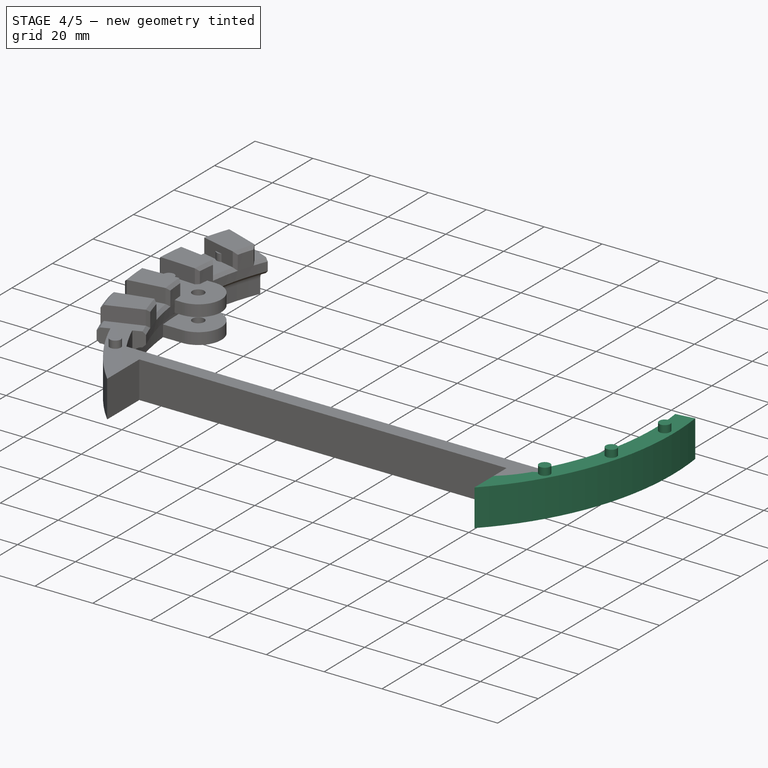
[diagram: stage 4 of 5 — iso view after this stage's code; geometry added in this stage tinted green]
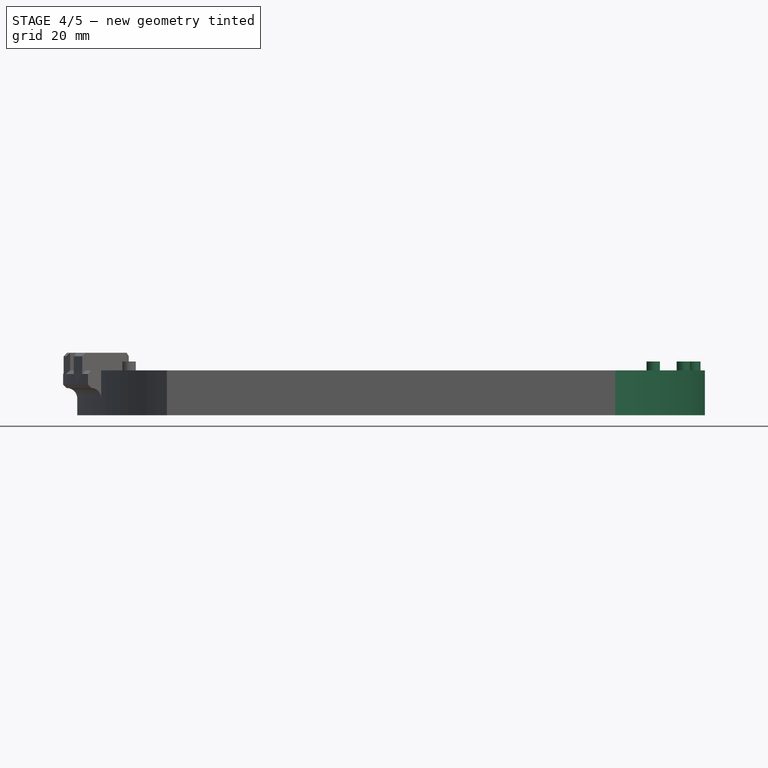
[diagram: stage 4 of 5 — front view after this stage's code; geometry added in this stage tinted green]
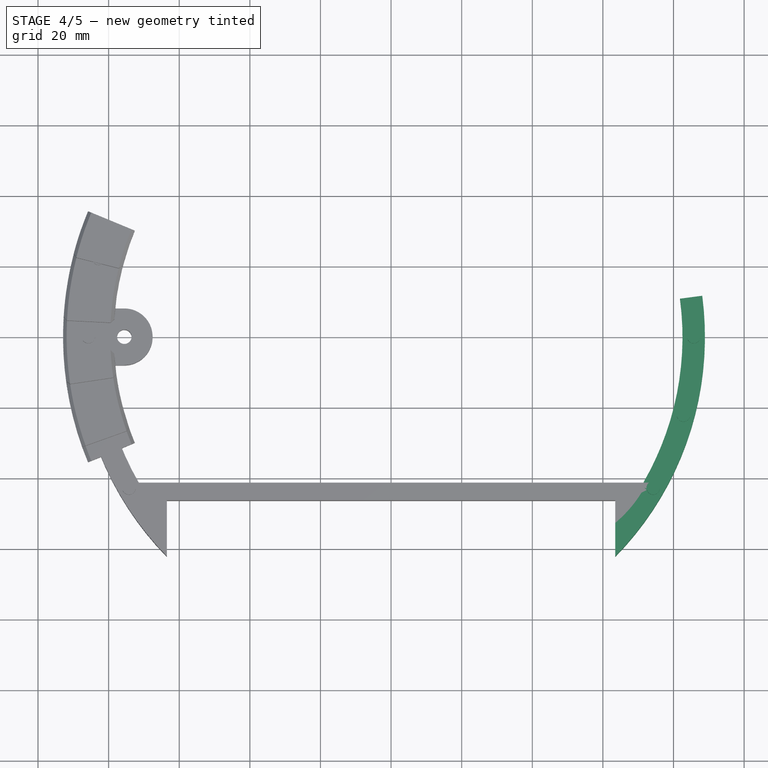
[diagram: stage 4 of 5 — top view after this stage's code; geometry added in this stage tinted green]
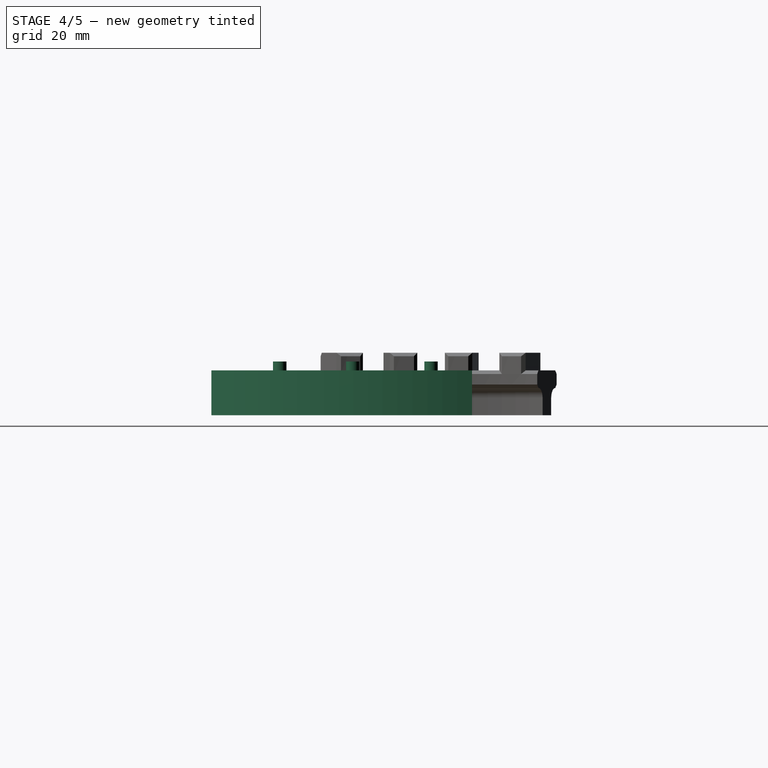
[diagram: stage 4 of 5 — right view after this stage's code; geometry added in this stage tinted green]
FEATURE [Sketcher::SketchObject] Sketch008  label="WorkLines003"
  Placement = pos=(0,0,6.35) rot=(0,0,1;0rad)
  sketch-geometry (17):
    g0: LineSegment [constr] StartX=-63.5 StartY=-46.342 StartZ=0 EndX=63.5 EndY=-46.342 EndZ=0
    g1: LineSegment [constr] StartX=63.5 StartY=-46.342 StartZ=0 EndX=63.5 EndY=-62.217 EndZ=0
    g2: LineSegment [constr] StartX=63.5 StartY=-62.217 StartZ=0 EndX=-63.5 EndY=-62.217 EndZ=0
    g3: LineSegment [constr] StartX=-63.5 StartY=-62.217 StartZ=0 EndX=-63.5 EndY=-46.342 EndZ=0
    g4: LineSegment [constr] StartX=0 StartY=0 StartZ=0 EndX=-127 EndY=0 EndZ=0
    g5: LineSegment [constr] StartX=0 StartY=0 StartZ=0 EndX=-89.8026 EndY=89.8026 EndZ=0
    g6: Circle [constr] CenterX=0 CenterY=0 CenterZ=0 NormalX=0 NormalY=0 NormalZ=1 Radius=88.9
    g7: Circle [constr] CenterX=0 CenterY=0 CenterZ=0 NormalX=0 NormalY=0 NormalZ=1 Radius=82.55
    g8: LineSegment [constr] StartX=0 StartY=0 StartZ=0 EndX=-125.913 EndY=16.5768 EndZ=0
    g9: GeomPoint [constr] X=-63.5 Y=-52.7471 Z=0
    g10: GeomPoint [constr] X=63.5 Y=-52.7471 Z=0
    g11: LineSegment StartX=-63.5 StartY=-62.217 StartZ=0 EndX=-63.5 EndY=-52.7471 EndZ=0
    g12: GeomPoint [constr] X=-81.8438 Y=10.7749 Z=0
    g13: GeomPoint [constr] X=-88.1394 Y=11.6038 Z=0
    g14: LineSegment StartX=-88.1394 StartY=11.6038 StartZ=0 EndX=-81.8438 EndY=10.7749 EndZ=0
    g15: ArcOfCircle CenterX=0 CenterY=0 CenterZ=0 NormalX=0 NormalY=0 NormalZ=1 Radius=88.9 StartAngle=3.01069 EndAngle=3.91679
    g16: ArcOfCircle CenterX=0 CenterY=0 CenterZ=0 NormalX=0 NormalY=0 NormalZ=1 Radius=82.55 StartAngle=3.01069 EndAngle=3.83475
  constraints (43):
    c: Coincident(g0,g1)
    c: Coincident(g1,g2)
    c: Coincident(g2,g3)
    c: Coincident(g3,g0)
    c: Horizontal(g0)
    c: Horizontal(g2)
    c: Vertical(g1)
    c: Vertical(g3)
    c: Symmetric(g0,g0,g-2)
    c: DistanceY(g0,g1) = -15.875
    c: DistanceX(g0,g0) = 127
    c: Coincident(g4,g-1)
    c: Distance(g4) = 127
    c: Angle(g-2,g4) = 1.5708
    c: Coincident(g5,g-1)
    c: Distance(g5) = 127
    c: Angle(g-2,g5) = 0.785398
    c: Coincident(g6,g-1)
    c: Radius(g6) = 88.9
    c: PointOnObject(g2,g6)
    c: Radius(g7) = 82.55
    c: Coincident(g7,g-1)
    c: Coincident(g8,g-1)
    c: Distance(g8) = 127
    c: Angle(g-2,g8) = 1.4399
    c: PointOnObject(g9,g7)
    c: PointOnObject(g9,g3)
    c: PointOnObject(g10,g1)
    c: PointOnObject(g10,g7)
    c: Coincident(g11,g2)
    c: Coincident(g11,g9)
    c: PointOnObject(g12,g7)
    c: PointOnObject(g12,g8)
    c: PointOnObject(g13,g6)
    c: PointOnObject(g13,g8)
    c: Coincident(g14,g13)
    c: Coincident(g14,g12)
    c: Coincident(g15,g13)
    c: Coincident(g15,g2)
    c: Radius(g15) = 88.9
    c: Coincident(g16,g12)
    c: Coincident(g16,g9)
    c: Radius(g16) = 82.55
FEATURE [PartDesign::Pad] Pad004
  Length = 12.7
  Length2 = 100
  Placement = pos=(0,0,6.35) rot=(0,0,1;0rad)
  Sketch = -> Sketch008
  Type = 0
FEATURE [Sketcher::SketchObject] Sketch009
  Placement = pos=(0,0,19.05) rot=(0,0,1;0rad)
  Support = -> Pad004 [Face6]
  sketch-geometry (3):
    g0: Circle [constr] CenterX=0 CenterY=0 CenterZ=0 NormalX=0 NormalY=0 NormalZ=1 Radius=85.725
    g1: Circle CenterX=-74.24 CenterY=-42.8625 CenterZ=0 NormalX=0 NormalY=0 NormalZ=1 Radius=1.905
    g2: LineSegment [constr] StartX=0 StartY=0 StartZ=0 EndX=-109.985 EndY=-63.5 EndZ=0
  constraints (8):
    c: Coincident(g0,g-1)
    c: Radius(g0) = 85.725
    c: Radius(g1) = 1.905
    c: Coincident(g2,g-1)
    c: Distance(g2) = 127
    c: Angle(g-2,g2) = 2.0944
    c: PointOnObject(g1,g0)
    c: PointOnObject(g1,g2)
FEATURE [PartDesign::Pad] Pad005
  Length = 2.54
  Length2 = 100
  Placement = pos=(0,0,6.35) rot=(0,0,1;0rad)
  Sketch = -> Sketch009
  Type = 0
FEATURE [PartDesign::PolarPattern] PolarPattern002
  Angle = 360
  Axis = -> Sketch009 [N_Axis]
  Occurrences = 24
  Originals = -> [Pad005]
  Placement = pos=(0,0,6.35) rot=(0,0,1;0rad)
FEATURE [Sketcher::SketchObject] Sketch010
  Placement = pos=(0,0,6.35) rot=(1,0,0;3.14159rad)
  Support = -> PolarPattern002 [Face4]
  sketch-geometry (3):
    g0: LineSegment [constr] StartX=0 StartY=0 StartZ=0 EndX=-109.985 EndY=63.5 EndZ=0
    g1: Circle [constr] CenterX=0 CenterY=0 CenterZ=0 NormalX=0 NormalY=0 NormalZ=1 Radius=85.725
    g2: Circle CenterX=-74.24 CenterY=42.8625 CenterZ=0 NormalX=0 NormalY=0 NormalZ=1 Radius=2.032
  constraints (8):
    c: Distance(g0) = 127
    c: Coincident(g0,g-1)
    c: Angle(g-1,g0) = 2.61799
    c: Coincident(g1,g-1)
    c: Radius(g1) = 85.725
    c: PointOnObject(g2,g0)
    c: PointOnObject(g2,g1)
    c: Radius(g2) = 2.032
FEATURE [PartDesign::Pocket] Pocket002
  Length = 3.175
  Placement = pos=(0,0,6.35) rot=(0,0,1;0rad)
  Sketch = -> Sketch010
  Type = 0
FEATURE [PartDesign::PolarPattern] PolarPattern003  label="End3"
  Angle = 360
  Axis = -> Sketch010 [N_Axis]
  Occurrences = 24
  Originals = -> [Pocket002]
  Placement = pos=(0,0,6.35) rot=(0,0,1;0rad)
FEATURE [Part::Mirroring] Part__Mirroring001  label="End3 (Mirror #2)"
  Base = (0,0,0)
  Normal = (1,0,0)
  Source = -> PolarPattern003
FEATURE [Part::MultiFuse] Fusion
  Shapes = -> [PolarPattern005,Pad008]
FEATURE [Part::MultiFuse] Fusion001
  Shapes = -> [Fusion,Part__Mirroring001]
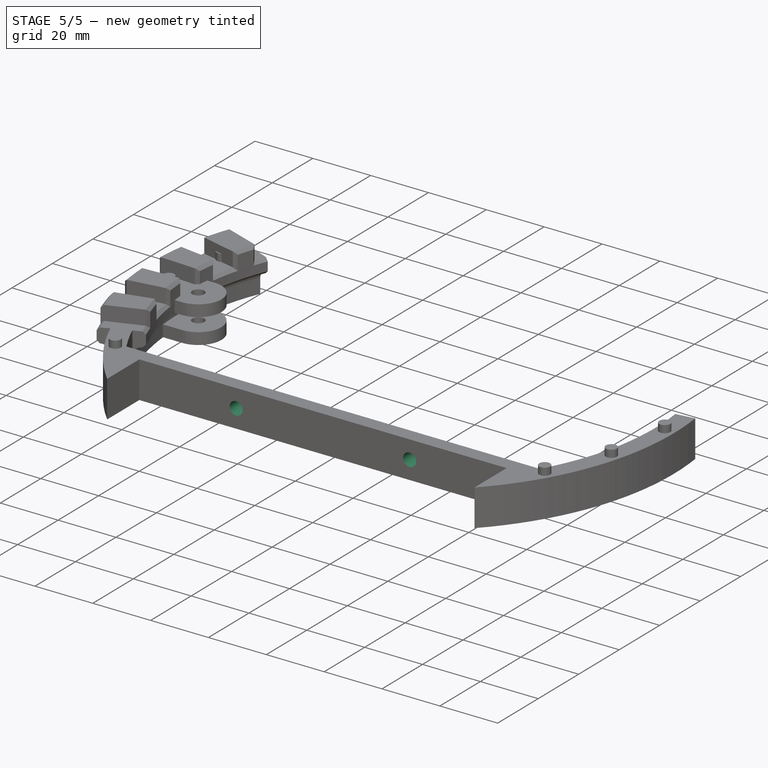
[diagram: stage 5 of 5 — iso view after this stage's code; geometry added in this stage tinted green]
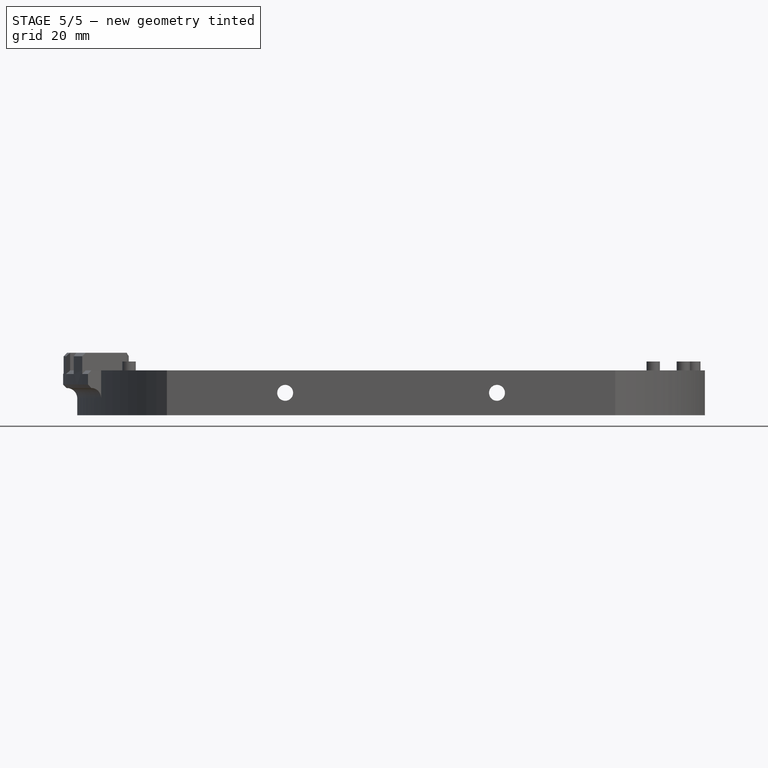
[diagram: stage 5 of 5 — front view after this stage's code; geometry added in this stage tinted green]
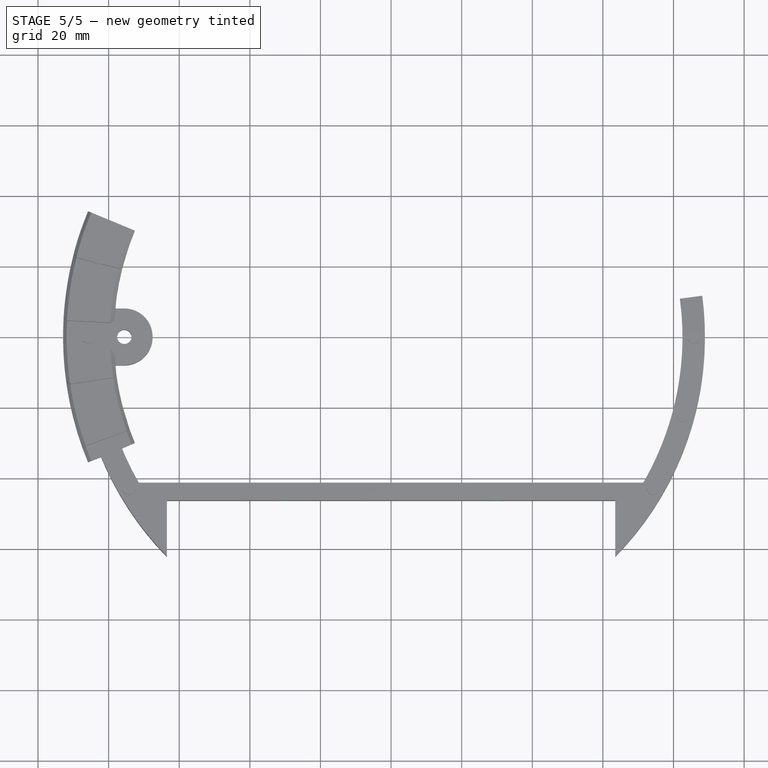
[diagram: stage 5 of 5 — top view after this stage's code; geometry added in this stage tinted green]
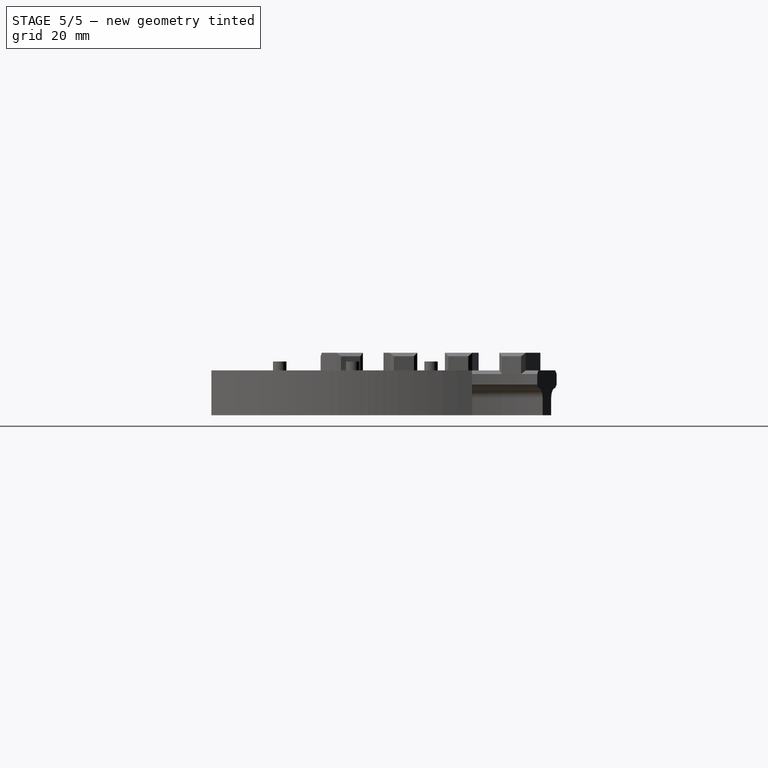
[diagram: stage 5 of 5 — right view after this stage's code; geometry added in this stage tinted green]
FEATURE [Sketcher::SketchObject] Sketch002  label="WorkLines"
  Placement = pos=(0,0,6.35) rot=(0,0,1;0rad)
  sketch-geometry (12):
    g0: LineSegment [constr] StartX=-63.5 StartY=-46.342 StartZ=0 EndX=63.5 EndY=-46.342 EndZ=0
    g1: LineSegment [constr] StartX=63.5 StartY=-46.342 StartZ=0 EndX=63.5 EndY=-62.217 EndZ=0
    g2: LineSegment [constr] StartX=63.5 StartY=-62.217 StartZ=0 EndX=-63.5 EndY=-62.217 EndZ=0
    g3: LineSegment [constr] StartX=-63.5 StartY=-62.217 StartZ=0 EndX=-63.5 EndY=-46.342 EndZ=0
    g4: LineSegment [constr] StartX=0 StartY=0 StartZ=0 EndX=-117.333 EndY=48.6008 EndZ=0
    g5: LineSegment [constr] StartX=0 StartY=0 StartZ=0 EndX=-48.6008 EndY=117.333 EndZ=0
    g6: Circle [constr] CenterX=0 CenterY=0 CenterZ=0 NormalX=0 NormalY=0 NormalZ=1 Radius=88.9
    g7: Circle [constr] CenterX=0 CenterY=0 CenterZ=0 NormalX=0 NormalY=0 NormalZ=1 Radius=82.55
    g8: LineSegment [constr] StartX=0 StartY=0 StartZ=0 EndX=-117.333 EndY=-48.6008 EndZ=0
    g9: LineSegment StartX=0 StartY=0 StartZ=0 EndX=117.333 EndY=-48.6008 EndZ=0
    g10: LineSegment StartX=0 StartY=0 StartZ=0 EndX=53.5006 EndY=129.162 EndZ=0
    g11: LineSegment StartX=0 StartY=0 StartZ=0 EndX=112.369 EndY=46.5446 EndZ=0
  constraints (32):
    c: Coincident(g0,g1)
    c: Coincident(g1,g2)
    c: Coincident(g2,g3)
    c: Coincident(g3,g0)
    c: Horizontal(g0)
    c: Horizontal(g2)
    c: Vertical(g1)
    c: Vertical(g3)
    c: Symmetric(g0,g0,g-2)
    c: DistanceY(g0,g1) = -15.875
    c: DistanceX(g0,g0) = 127
    c: Coincident(g4,g-1)
    c: Distance(g4) = 127
    c: Coincident(g5,g-1)
    c: Distance(g5) = 127
    c: Coincident(g6,g-1)
    c: Radius(g6) = 88.9
    c: PointOnObject(g2,g6)
    c: Radius(g7) = 82.55
    c: Coincident(g7,g-1)
    c: Coincident(g8,g-1)
    c: Distance(g8) = 127
    c: Coincident(g9,g-1)
    c: Distance(g9) = 127
    c: Coincident(g10,g-1)
    c: Angle(g-2,g8) = 1.9635
    c: Angle(g4,g8) = 0.785398
    c: Angle(g5,g4) = 0.785398
    c: Angle(g10,g5) = 0.785398
    c: Coincident(g11,g-1)
    c: Angle(g11,g10) = 0.785398
    c: Angle(g9,g11) = 0.785398
FEATURE [Sketcher::SketchObject] Sketch  label="WorkLines001"
  Placement = pos=(0,0,6.35) rot=(0,0,1;0rad)
  sketch-geometry (17):
    g0: LineSegment [constr] StartX=-63.5 StartY=-46.342 StartZ=0 EndX=63.5 EndY=-46.342 EndZ=0
    g1: LineSegment [constr] StartX=63.5 StartY=-46.342 StartZ=0 EndX=63.5 EndY=-62.217 EndZ=0
    g2: LineSegment [constr] StartX=63.5 StartY=-62.217 StartZ=0 EndX=-63.5 EndY=-62.217 EndZ=0
    g3: LineSegment [constr] StartX=-63.5 StartY=-62.217 StartZ=0 EndX=-63.5 EndY=-46.342 EndZ=0
    g4: LineSegment [constr] StartX=0 StartY=0 StartZ=0 EndX=-127 EndY=0 EndZ=0
    g5: LineSegment [constr] StartX=0 StartY=0 StartZ=0 EndX=-89.8026 EndY=89.8026 EndZ=0
    g6: Circle [constr] CenterX=0 CenterY=0 CenterZ=0 NormalX=0 NormalY=0 NormalZ=1 Radius=88.9
    g7: Circle [constr] CenterX=0 CenterY=0 CenterZ=0 NormalX=0 NormalY=0 NormalZ=1 Radius=82.55
    g8: LineSegment [constr] StartX=0 StartY=0 StartZ=0 EndX=-117.333 EndY=-48.6008 EndZ=0
    g9: GeomPoint [constr] X=-63.5 Y=-52.7471 Z=0
    g10: GeomPoint [constr] X=63.5 Y=-52.7471 Z=0
    g11: LineSegment StartX=-63.5 StartY=-62.217 StartZ=0 EndX=-63.5 EndY=-52.7471 EndZ=0
    g12: GeomPoint [constr] X=-76.2663 Y=-31.5905 Z=0
    g13: GeomPoint [constr] X=-82.1329 Y=-34.0206 Z=0
    g14: LineSegment StartX=-82.1329 StartY=-34.0206 StartZ=0 EndX=-76.2663 EndY=-31.5905 EndZ=0
    g15: ArcOfCircle CenterX=0 CenterY=0 CenterZ=0 NormalX=0 NormalY=0 NormalZ=1 Radius=88.9 StartAngle=3.53429 EndAngle=3.91679
    g16: ArcOfCircle CenterX=0 CenterY=0 CenterZ=0 NormalX=0 NormalY=0 NormalZ=1 Radius=82.55 StartAngle=3.53429 EndAngle=3.83475
  constraints (43):
    c: Coincident(g0,g1)
    c: Coincident(g1,g2)
    c: Coincident(g2,g3)
    c: Coincident(g3,g0)
    c: Horizontal(g0)
    c: Horizontal(g2)
    c: Vertical(g1)
    c: Vertical(g3)
    c: Symmetric(g0,g0,g-2)
    c: DistanceY(g0,g1) = -15.875
    c: DistanceX(g0,g0) = 127
    c: Coincident(g4,g-1)
    c: Distance(g4) = 127
    c: Angle(g-2,g4) = 1.5708
    c: Coincident(g5,g-1)
    c: Distance(g5) = 127
    c: Angle(g-2,g5) = 0.785398
    c: Coincident(g6,g-1)
    c: Radius(g6) = 88.9
    c: PointOnObject(g2,g6)
    c: Radius(g7) = 82.55
    c: Coincident(g7,g-1)
    c: Coincident(g8,g-1)
    c: Distance(g8) = 127
    c: Angle(g-2,g8) = 1.9635
    c: PointOnObject(g9,g7)
    c: PointOnObject(g9,g3)
    c: PointOnObject(g10,g1)
    c: PointOnObject(g10,g7)
    c: Coincident(g11,g2)
    c: Coincident(g11,g9)
    c: PointOnObject(g12,g7)
    c: PointOnObject(g12,g8)
    c: PointOnObject(g13,g6)
    c: PointOnObject(g13,g8)
    c: Coincident(g14,g13)
    c: Coincident(g14,g12)
    c: Coincident(g15,g13)
    c: Coincident(g15,g2)
    c: Radius(g15) = 88.9
    c: Coincident(g16,g12)
    c: Coincident(g16,g9)
    c: Radius(g16) = 82.55
FEATURE [PartDesign::Pad] Pad
  Length = 12.7
  Length2 = 100
  Placement = pos=(0,0,6.35) rot=(0,0,1;0rad)
  Sketch = -> Sketch
  Type = 0
FEATURE [Sketcher::SketchObject] Sketch003
  Placement = pos=(0,0,19.05) rot=(0,0,1;0rad)
  Support = -> Pad [Face6]
  sketch-geometry (3):
    g0: Circle [constr] CenterX=0 CenterY=0 CenterZ=0 NormalX=0 NormalY=0 NormalZ=1 Radius=85.725
    g1: Circle CenterX=-74.24 CenterY=-42.8625 CenterZ=0 NormalX=0 NormalY=0 NormalZ=1 Radius=1.905
    g2: LineSegment [constr] StartX=0 StartY=0 StartZ=0 EndX=-109.985 EndY=-63.5 EndZ=0
  constraints (8):
    c: Coincident(g0,g-1)
    c: Radius(g0) = 85.725
    c: Radius(g1) = 1.905
    c: Coincident(g2,g-1)
    c: Distance(g2) = 127
    c: Angle(g-2,g2) = 2.0944
    c: PointOnObject(g1,g0)
    c: PointOnObject(g1,g2)
FEATURE [PartDesign::Pad] Pad001
  Length = 2.54
  Length2 = 100
  Placement = pos=(0,0,6.35) rot=(0,0,1;0rad)
  Sketch = -> Sketch003
  Type = 0
FEATURE [Sketcher::SketchObject] Sketch006
  Placement = pos=(0,0,6.35) rot=(1,0,0;3.14159rad)
  Support = -> Pad001 [Face4]
  sketch-geometry (3):
    g0: LineSegment [constr] StartX=0 StartY=0 StartZ=0 EndX=-109.985 EndY=63.5 EndZ=0
    g1: Circle [constr] CenterX=0 CenterY=0 CenterZ=0 NormalX=0 NormalY=0 NormalZ=1 Radius=85.725
    g2: Circle CenterX=-74.24 CenterY=42.8625 CenterZ=0 NormalX=0 NormalY=0 NormalZ=1 Radius=2.032
  constraints (8):
    c: Distance(g0) = 127
    c: Coincident(g0,g-1)
    c: Angle(g-1,g0) = 2.61799
    c: Coincident(g1,g-1)
    c: Radius(g1) = 85.725
    c: PointOnObject(g2,g0)
    c: PointOnObject(g2,g1)
    c: Radius(g2) = 2.032
FEATURE [PartDesign::Pocket] Pocket  label="End1"
  Length = 3.175
  Placement = pos=(0,0,6.35) rot=(0,0,1;0rad)
  Sketch = -> Sketch006
  Type = 0
FEATURE [Part::Mirroring] Part__Mirroring  label="End1 (Mirror #1)"
  Base = (0,0,0)
  Normal = (1,0,0)
  Source = -> Pocket
FEATURE [Part::Mirroring] Part__Mirroring002  label="End2 (Mirror #3)"
  Base = (0,0,0)
  Normal = (1,0,0)
  Source = -> PolarPattern005
FEATURE [Sketcher::SketchObject] Sketch015
  ExternalGeometry = -> [Fusion001]
  Placement = pos=(0,-46.342,0) rot=(1,0,0;1.5708rad)
  Support = -> Fusion001 [Face1]
  sketch-geometry (6):
    g0: LineSegment [constr] StartX=-63.5 StartY=19.05 StartZ=0 EndX=-63.5 EndY=12.7 EndZ=0
    g1: LineSegment [constr] StartX=-63.5 StartY=6.35 StartZ=0 EndX=-63.5 EndY=12.7 EndZ=0
    g2: LineSegment [constr] StartX=-63.5 StartY=12.7 StartZ=0 EndX=-30 EndY=12.7 EndZ=0
    g3: GeomPoint [constr] X=30 Y=12.7 Z=0
    g4: Circle CenterX=-30 CenterY=12.7 CenterZ=0 NormalX=0 NormalY=0 NormalZ=1 Radius=2.25
    g5: Circle CenterX=30 CenterY=12.7 CenterZ=0 NormalX=0 NormalY=0 NormalZ=1 Radius=2.25
  constraints (13):
    c: Coincident(g1,g0)
    c: Vertical(g0)
    c: Equal(g0,g1)
    c: Coincident(g2,g0)
    c: Horizontal(g2)
    c: DistanceX(g2) = 33.5
    c: Coincident(g0,g-4)
    c: Coincident(g1,g-3)
    c: Symmetric(g2,g3,g-2)
    c: Coincident(g4,g2)
    c: Coincident(g5,g3)
    c: Equal(g4,g5)
    c: Radius(g5) = 2.25
FEATURE [PartDesign::Pocket] Pocket004
  Length = 5
  Sketch = -> Sketch015
  Type = 1
FEATURE [Part::MultiFuse] Fusion002
  Shapes = -> [Part__Mirroring001,Pocket004]
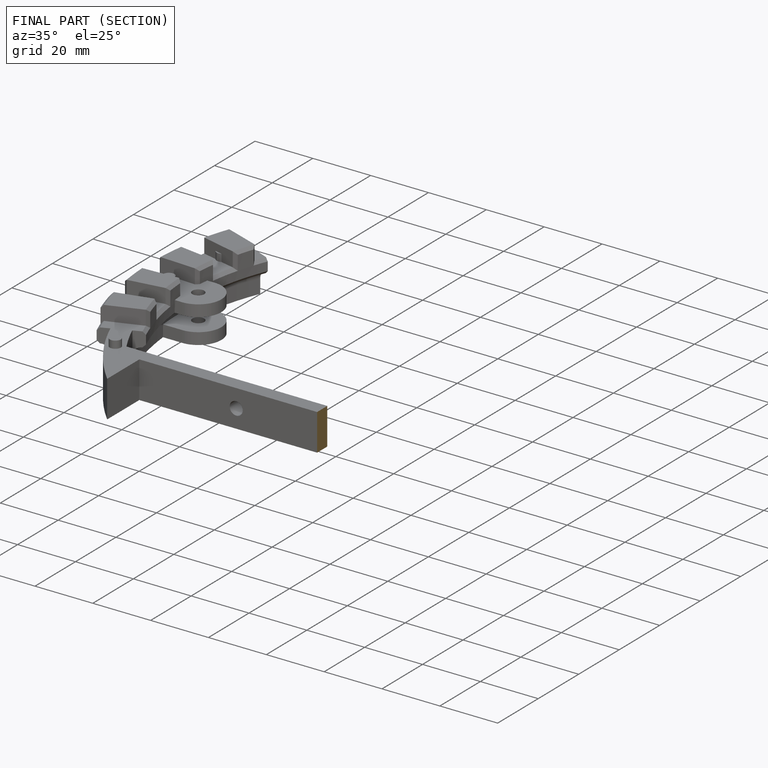
[diagram: finished part — half-section view (interior)]
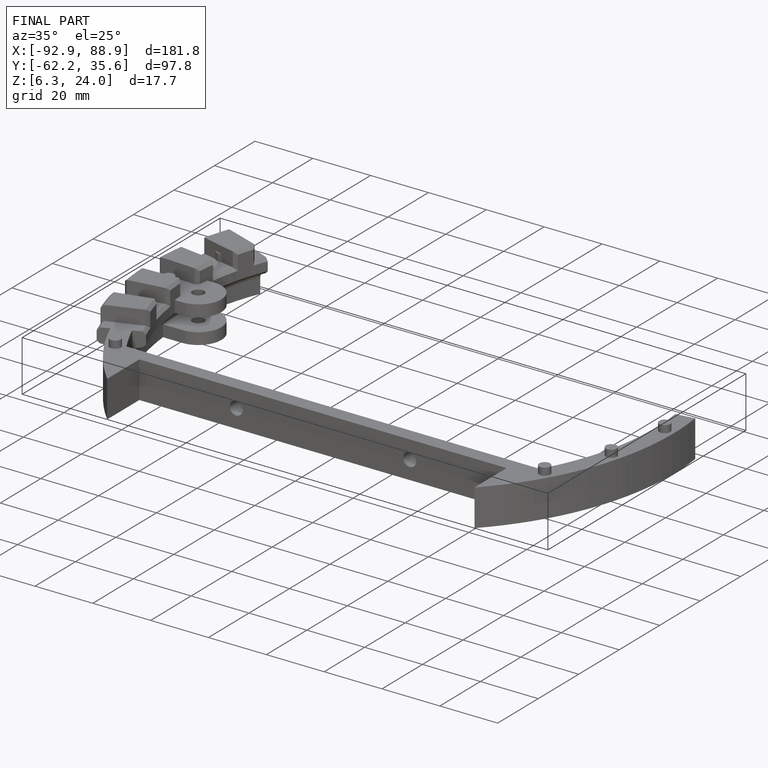
[diagram: finished part — iso view with bounding-box wireframe]
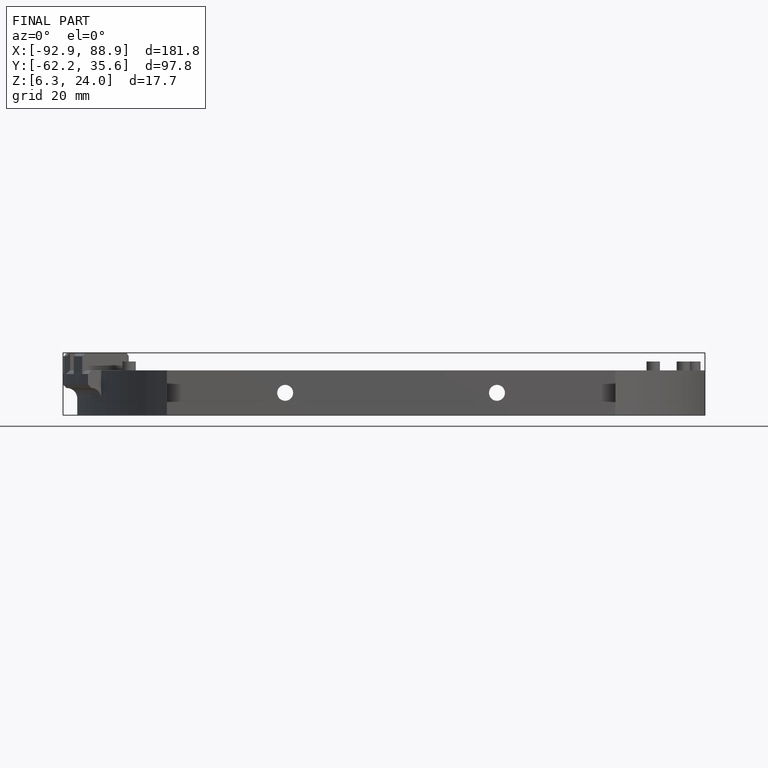
[diagram: finished part — front view with bounding-box wireframe]
